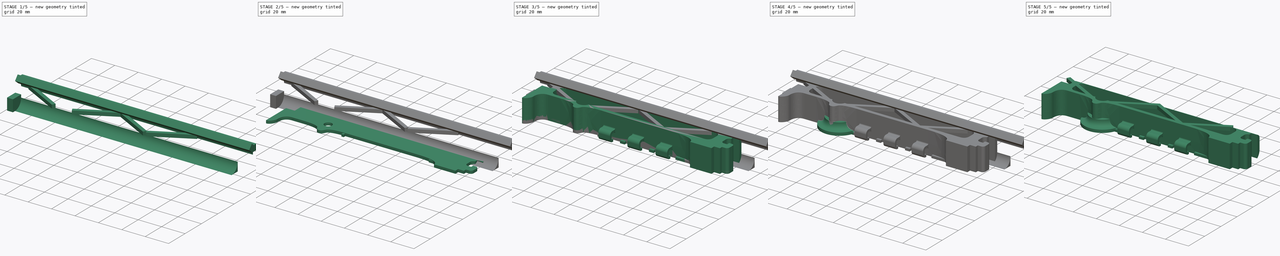
[diagram: build sequence overview — one tinted view per stage of 5, left to right]
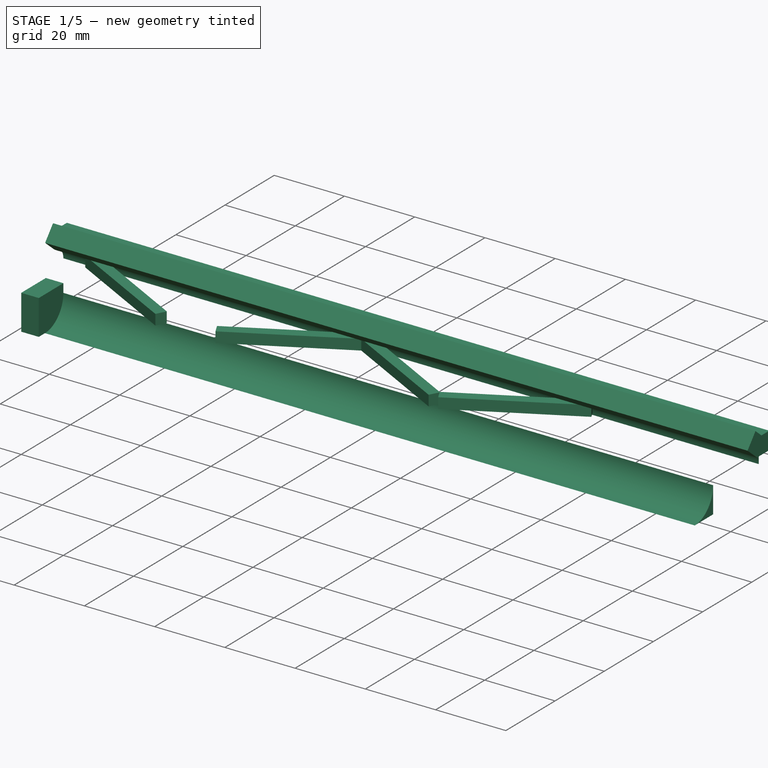
[diagram: stage 1 of 5 — iso view after this stage's code; geometry added in this stage tinted green]
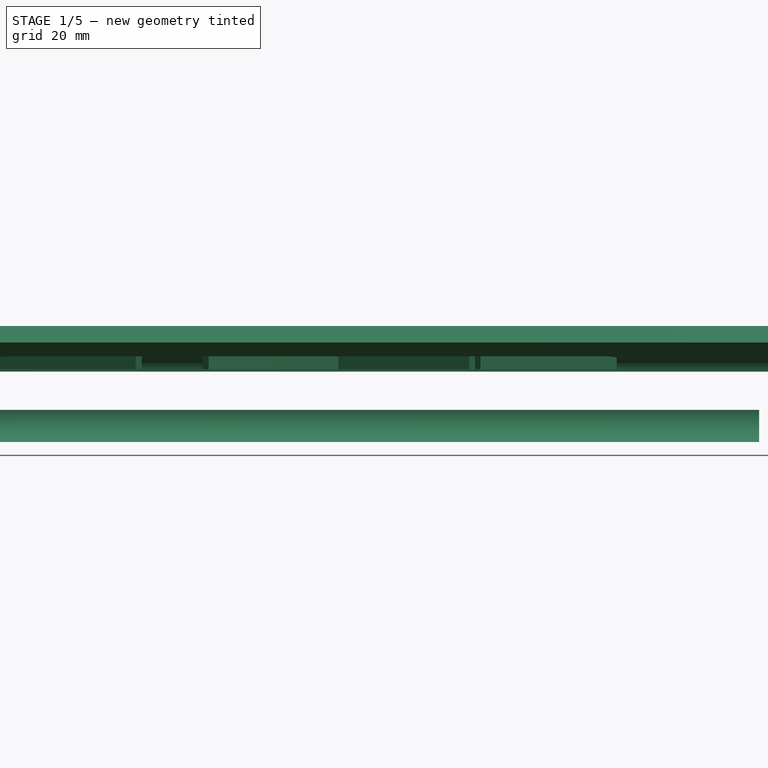
[diagram: stage 1 of 5 — front view after this stage's code; geometry added in this stage tinted green]
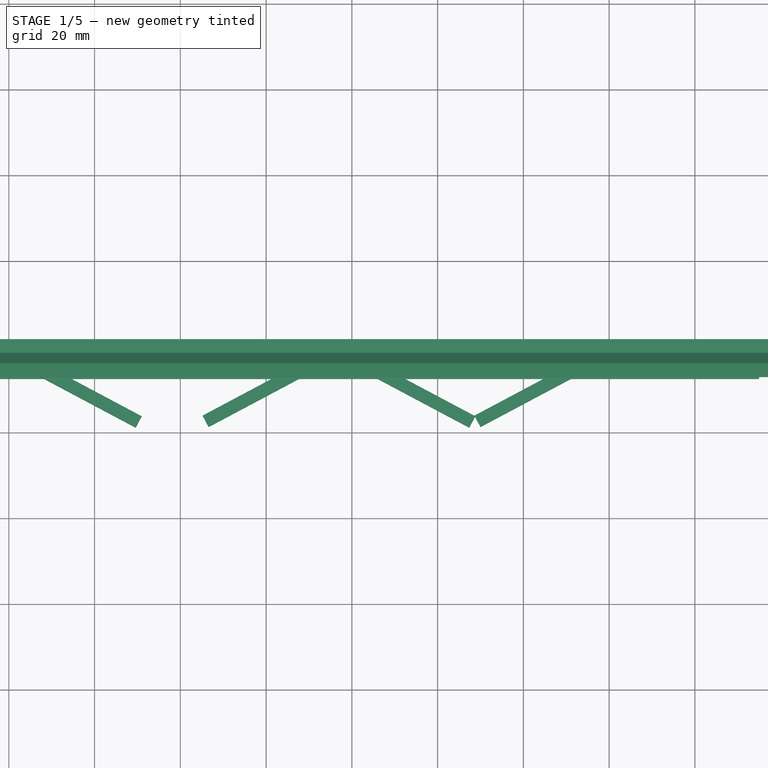
[diagram: stage 1 of 5 — top view after this stage's code; geometry added in this stage tinted green]
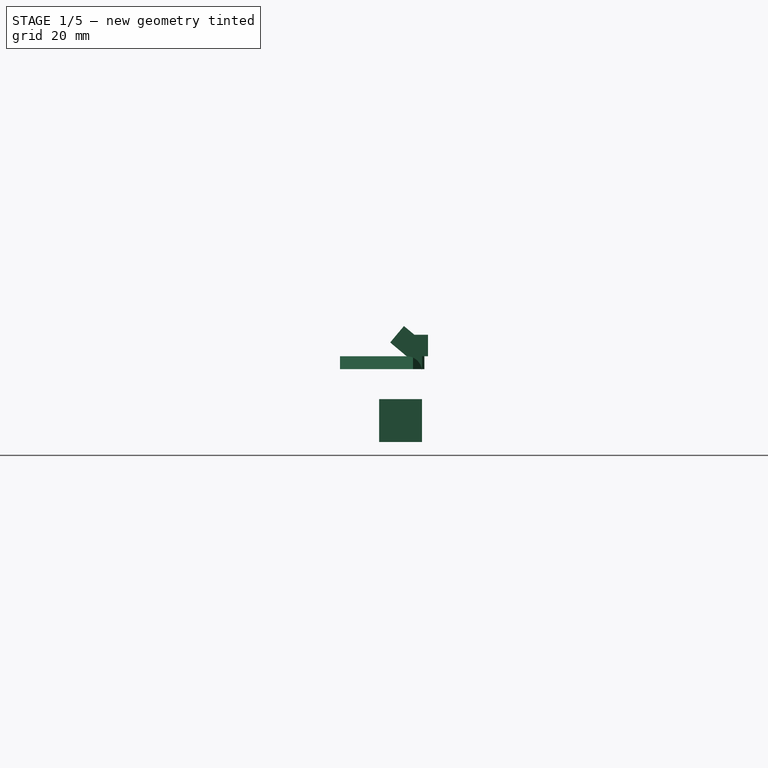
[diagram: stage 1 of 5 — right view after this stage's code; geometry added in this stage tinted green]
FCSTD DOCUMENT  (FreeCAD 0.19R0.19.2)
Label: v0_33
License: All rights reserved
LicenseURL: http://en.wikipedia.org/wiki/All_rights_reserved
objects: Part::Box×50, Part::MultiFuse×20, Part::Cut×7, Sketcher::SketchObject×6, Part::Extrusion×5, Part::Fillet×4, App::MeasureDistance×3, Part::Revolution×1
note: 93 computed .brp shape members not serialized (recipe doc carries the construction recipe); baked Part::Feature solids carry a one-line shape summary decoded from their .brp

FEATURE [Part::Box] Box051  label="Cube051"
  AttacherType = Attacher::AttachEngine3D
  Height = 10
  Length = 198
  Placement = pos=(-30,0,0) rot=(0,0,1;0rad)
  Width = 10
FEATURE [Part::Box] Box052  label="Cube052"
  AttacherType = Attacher::AttachEngine3D
  Height = 5
  Length = 200
  Placement = pos=(-30,6.4,10) rot=(1,0,0;0rad)
  Width = 5
FEATURE [Part::Box] Box053  label="Cube053"
  AttacherType = Attacher::AttachEngine3D
  Height = 5
  Length = 200
  Placement = pos=(-30,6.4,10) rot=(1,0,0;0.872665rad)
  Width = 5
FEATURE [Part::Box] Box054  label="Cube054"
  AttacherType = Attacher::AttachEngine3D
  Height = 10
  Length = 200
  Placement = pos=(-30,0,0) rot=(0,0,1;0rad)
  Width = 10
FEATURE [Part::Fillet] Fillet021
  Base = -> Box054
  Edges = 1 edges r=3.6: [Edge12]
FEATURE [Part::Cut] Cut015
  Base = -> Box051
  Tool = -> Fillet021
FEATURE [Part::MultiFuse] Fusion033  label="removeFromMainFusion014"
  Placement = pos=(-120,-10,10) rot=(0,0,1;0rad)
  Shapes = -> [Box053,Box052,Cut015]
FEATURE [Part::Box] Box055  label="Cube055"
  AttacherType = Attacher::AttachEngine3D
  Height = 10
  Length = 190
  Placement = pos=(-30,0,0) rot=(0,0,1;0rad)
  Width = 10
FEATURE [Part::Box] Box056  label="Cube056"
  AttacherType = Attacher::AttachEngine3D
  Height = 10
  Length = 190
  Placement = pos=(-35,0,0) rot=(0,0,1;0rad)
  Width = 10
FEATURE [Part::Fillet] Fillet022
  Base = -> Box055
  Edges = 1 edges r=7.5: [Edge11]
FEATURE [Part::Cut] Cut014  label="filletMain001"
  Base = -> Box056
  Placement = pos=(-120,-10,0) rot=(0,0,1;0rad)
  Tool = -> Fillet022
FEATURE [Part::MultiFuse] Fusion032  label="removeFromMain001"
  Shapes = -> [Fusion033,Cut014]
FEATURE [App::MeasureDistance] Distance  label="Distance: 137.10 mm"
  Distance = 137.1
  P1 = (-129.5,-9.29272,20)
  P2 = (7.6,-9.28168,20)
FEATURE [Part::Box] Box057  label="Cube057"
  AttacherType = Attacher::AttachEngine3D
  Height = 3
  Length = 36
  Placement = pos=(-30,-19,17) rot=(0,0,1;0.488692rad)
  Width = 3
FEATURE [Part::Box] Box058  label="Cube058"
  AttacherType = Attacher::AttachEngine3D
  Height = 3
  Length = 36
  Placement = pos=(-31.2,-16.5,17) rot=(0,0,1;2.6529rad)
  Width = 3
FEATURE [Part::Box] Box059  label="Cube059"
  AttacherType = Attacher::AttachEngine3D
  Height = 3
  Length = 36
  Placement = pos=(-93.4,-19,17) rot=(0,0,1;0.488692rad)
  Width = 3
FEATURE [Part::Box] Box060  label="Cube060"
  AttacherType = Attacher::AttachEngine3D
  Height = 3
  Length = 36
  Placement = pos=(-109,-16.5,17) rot=(0,0,1;2.6529rad)
  Width = 3
FEATURE [App::MeasureDistance] Distance001  label="Distance: 2.11 mm"
  Distance = 2.10892
  P1 = (-94.5379,-16.2073,20)
  P2 = (-96.6448,-16.3,20)
FEATURE [App::MeasureDistance] Distance002  label="Distance: 2.11 mm001"
  Distance = 2.10678
  P1 = (-107.278,-16.3,20)
  P2 = (-109.385,-16.3,20)
FEATURE [Part::Box] Box061  label="Cube061"
  AttacherType = Attacher::AttachEngine3D
  Height = 3
  Length = 36
  Placement = pos=(-109,-16.5,17) rot=(0,0,1;2.6529rad)
  Width = 3
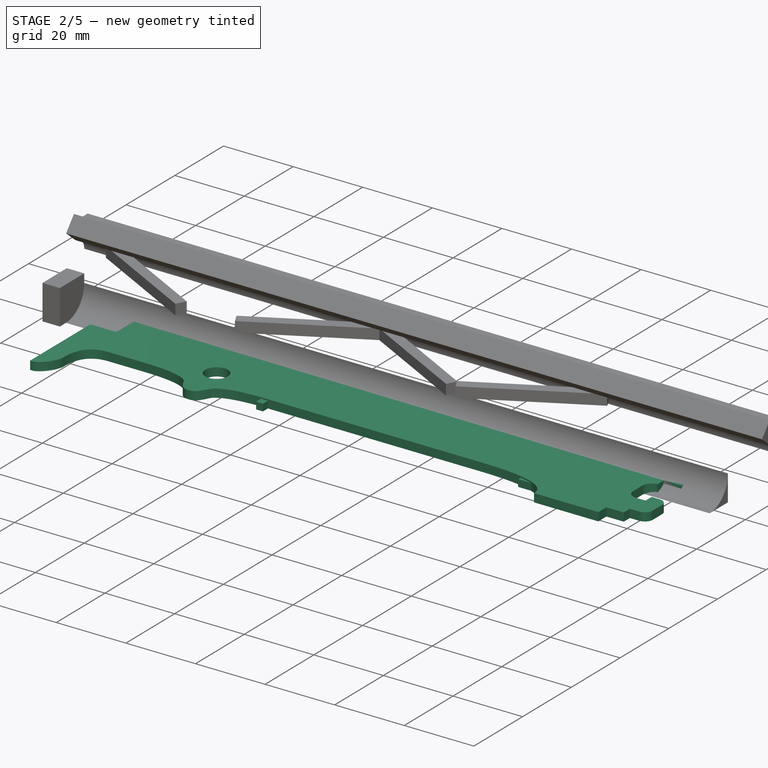
[diagram: stage 2 of 5 — iso view after this stage's code; geometry added in this stage tinted green]
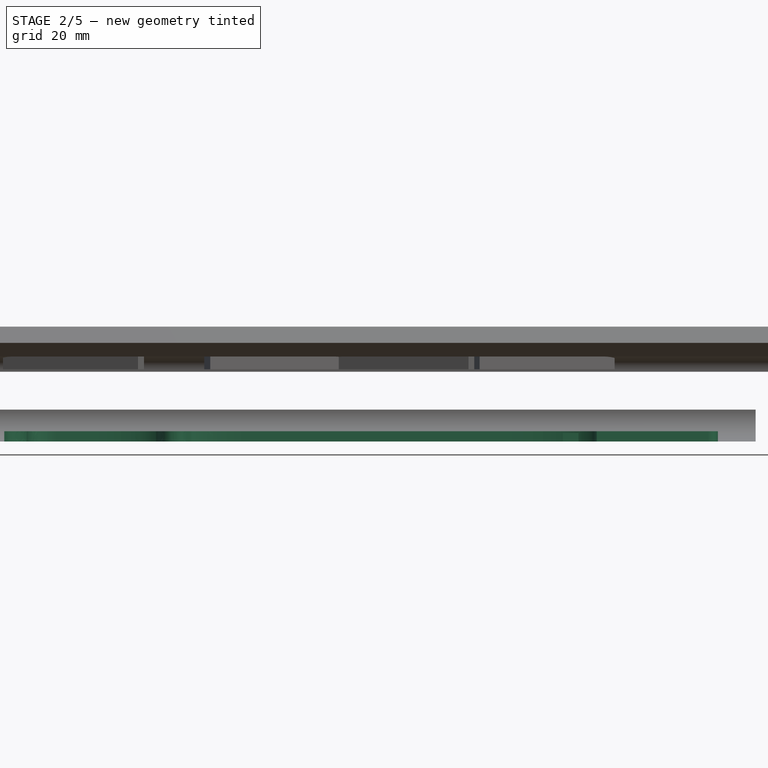
[diagram: stage 2 of 5 — front view after this stage's code; geometry added in this stage tinted green]
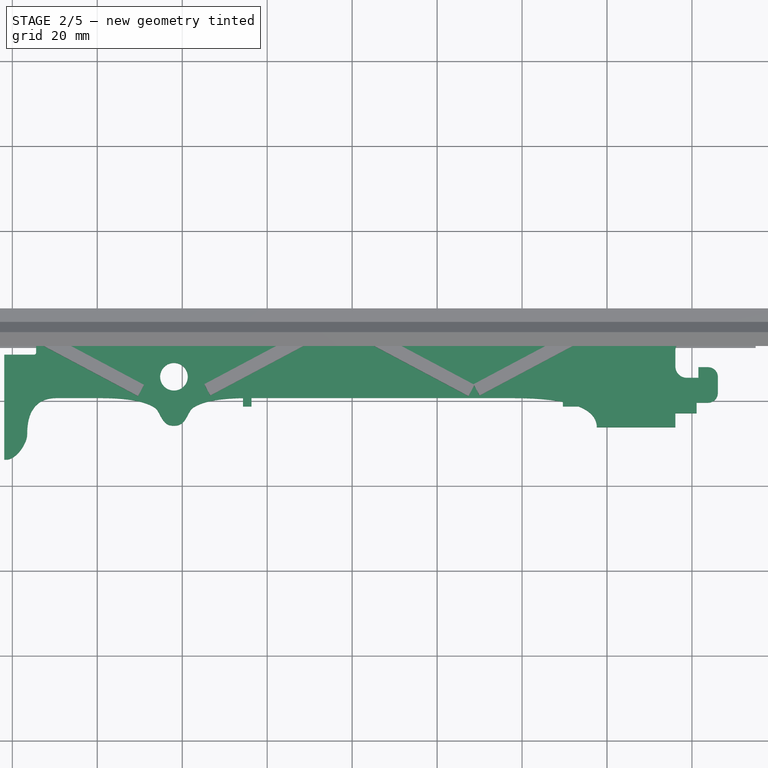
[diagram: stage 2 of 5 — top view after this stage's code; geometry added in this stage tinted green]
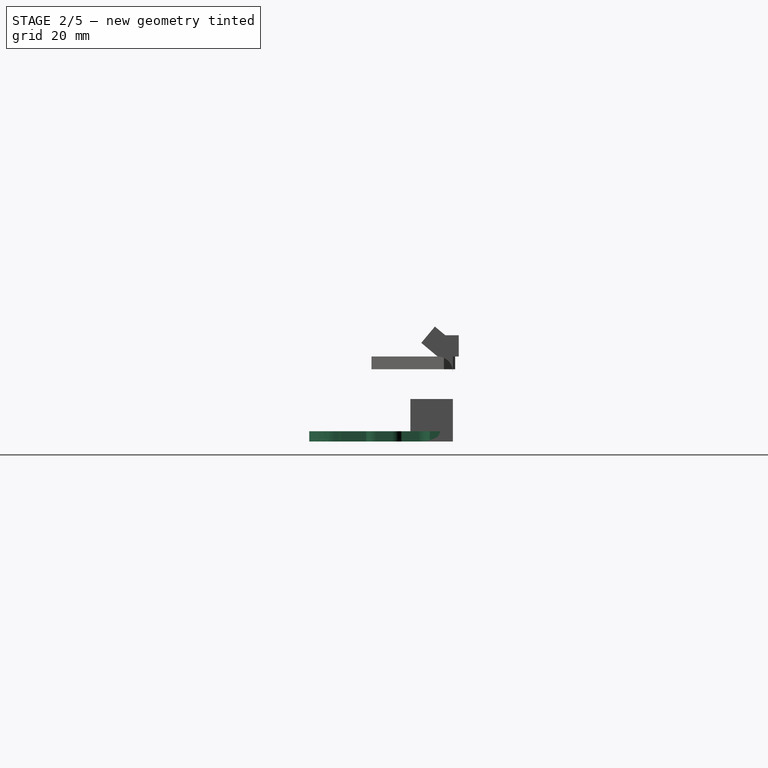
[diagram: stage 2 of 5 — right view after this stage's code; geometry added in this stage tinted green]
FEATURE [Part::Box] Box047  label="Cube047"
  AttacherType = Attacher::AttachEngine3D
  Height = 2
  Length = 2
  Placement = pos=(-85.7,-21.3,0) rot=(0,0,1;0rad)
  Width = 2
FEATURE [Part::Box] Box048  label="Cube048"
  AttacherType = Attacher::AttachEngine3D
  Height = 2
  Length = 2
  Placement = pos=(-87.7,-21.3,0) rot=(0,0,1;0rad)
  Width = 2
FEATURE [Part::Box] Box049  label="Cube049"
  AttacherType = Attacher::AttachEngine3D
  Height = 2
  Length = 2
  Placement = pos=(-85.7,-21.3,0) rot=(0,0,1;0rad)
  Width = 2
FEATURE [Part::MultiFuse] Fusion022
  Placement = pos=(77.3,0,0) rot=(0,0,1;0rad)
  Shapes = -> [Box049,Box048]
FEATURE [Part::Box] Box005  label="Cube005"
  AttacherType = Attacher::AttachEngine3D
  Height = 10
  Length = 198
  Placement = pos=(-30,0,0) rot=(0,0,1;0rad)
  Width = 10
FEATURE [Part::Box] Box006  label="Cube006"
  AttacherType = Attacher::AttachEngine3D
  Height = 5
  Length = 200
  Placement = pos=(-30,6.4,10) rot=(1,0,0;0rad)
  Width = 5
FEATURE [Part::Box] Box007  label="Cube007"
  AttacherType = Attacher::AttachEngine3D
  Height = 5
  Length = 200
  Placement = pos=(-30,6.4,10) rot=(1,0,0;0.872665rad)
  Width = 5
FEATURE [Part::Box] Box004  label="Cube004"
  AttacherType = Attacher::AttachEngine3D
  Height = 10
  Length = 200
  Placement = pos=(-30,0,0) rot=(0,0,1;0rad)
  Width = 10
FEATURE [Part::Fillet] Fillet020
  Base = -> Box004
  Edges = 1 edges r=3.6: [Edge12]
FEATURE [Part::Cut] Cut012
  Base = -> Box005
  Tool = -> Fillet020
FEATURE [Part::MultiFuse] Fusion013  label="removeFromMainFusion013"
  Placement = pos=(-120,-10,10) rot=(0,0,1;0rad)
  Shapes = -> [Box007,Box006,Cut012]
FEATURE [Part::Box] Box050  label="Cube050"
  AttacherType = Attacher::AttachEngine3D
  Height = 10
  Length = 190
  Placement = pos=(-30,0,0) rot=(0,0,1;0rad)
  Width = 10
FEATURE [Part::Box] Box001  label="Cube001"
  AttacherType = Attacher::AttachEngine3D
  Height = 10
  Length = 190
  Placement = pos=(-35,0,0) rot=(0,0,1;0rad)
  Width = 10
FEATURE [Part::Fillet] Fillet008
  Base = -> Box050
  Edges = 1 edges r=7.5: [Edge11]
FEATURE [Part::Cut] Cut013  label="filletMain"
  Base = -> Box001
  Placement = pos=(-120,-10,0) rot=(0,0,1;0rad)
  Tool = -> Fillet008
FEATURE [Part::MultiFuse] Fusion031  label="removeFromMain"
  Shapes = -> [Fusion013,Cut013]
FEATURE [Sketcher::SketchObject] Sketch
  FullyConstrained = true
  sketch-geometry (67):
    g0: Circle CenterX=-101.95 CenterY=-14.3 CenterZ=0 NormalX=0 NormalY=0 NormalZ=1 AngleXU=0 Radius=3.25
    g1: Circle CenterX=-97.7 CenterY=-21.8 CenterZ=0 NormalX=0 NormalY=0 NormalZ=1 AngleXU=0 Radius=1
    g2: Circle CenterX=-94.45 CenterY=-19.3 CenterZ=0 NormalX=0 NormalY=0 NormalZ=1 AngleXU=0 Radius=1
    g3: Circle CenterX=-84.45 CenterY=-19.3 CenterZ=0 NormalX=0 NormalY=0 NormalZ=1 AngleXU=0 Radius=1
    g4: BSplineCurve PolesCount=3 KnotsCount=2 Degree=2 IsPeriodic=0
    g5: GeomPoint X=-97.7 Y=-21.8 Z=0
    g6: GeomPoint X=-84.45 Y=-19.3 Z=0
    g7: Circle CenterX=-106.2 CenterY=-21.8 CenterZ=0 NormalX=0 NormalY=0 NormalZ=1 AngleXU=0 Radius=1
    g8: Circle CenterX=-109.45 CenterY=-19.3 CenterZ=0 NormalX=0 NormalY=0 NormalZ=1 AngleXU=0 Radius=1
    g9: Circle CenterX=-119.45 CenterY=-19.3 CenterZ=0 NormalX=0 NormalY=0 NormalZ=1 AngleXU=0 Radius=1
    g10: BSplineCurve PolesCount=3 KnotsCount=2 Degree=2 IsPeriodic=0
    g11: GeomPoint X=-106.2 Y=-21.8 Z=0
    g12: GeomPoint X=-119.45 Y=-19.3 Z=0
    g13-g16: Circle x4 (B-spline internal-alignment scaffolding for g17; pole/knot coordinates omitted)
    g17: BSplineCurve PolesCount=4 KnotsCount=2 Degree=3 IsPeriodic=0
    g18: GeomPoint X=-141.5 Y=-33.8 Z=0
    g19: GeomPoint X=-136.5 Y=-27.8 Z=0
    g20: Circle CenterX=-136.5 CenterY=-27.8 CenterZ=0 NormalX=0 NormalY=0 NormalZ=1 AngleXU=0 Radius=1
    g21: Circle CenterX=-136.5 CenterY=-19.3 CenterZ=0 NormalX=0 NormalY=0 NormalZ=1 AngleXU=0 Radius=1
    g22: Circle CenterX=-129.5 CenterY=-19.3 CenterZ=0 NormalX=0 NormalY=0 NormalZ=1 AngleXU=0 Radius=1
    g23: BSplineCurve PolesCount=3 KnotsCount=2 Degree=2 IsPeriodic=0
    g24: GeomPoint X=-136.5 Y=-27.8 Z=0
    g25: GeomPoint X=-129.5 Y=-19.3 Z=0
    g26: LineSegment StartX=-129.5 StartY=-19.3 StartZ=0 EndX=-119.45 EndY=-19.3 EndZ=0
    g27-g33: Circle x7 (B-spline internal-alignment scaffolding for g34; pole/knot coordinates omitted)
    g34: BSplineCurve PolesCount=7 KnotsCount=5 Degree=3 IsPeriodic=0
    g35-g39: GeomPoint x5 (B-spline internal-alignment scaffolding for g34; pole/knot coordinates omitted)
    g40: BSplineCurve PolesCount=3 KnotsCount=2 Degree=2 IsPeriodic=0
    g41: GeomPoint X=-2.4 Y=-26.2 Z=0
    g42: GeomPoint X=-22.4 Y=-19.3 Z=0
    g43: LineSegment StartX=-84.45 StartY=-19.3 StartZ=0 EndX=-22.4 EndY=-19.3 EndZ=0
    g44: LineSegment StartX=16.1 StartY=-26.2 StartZ=0 EndX=16.1 EndY=-22.9 EndZ=0
    g45: ArcOfCircle CenterX=23.8 CenterY=-14.35 CenterZ=0 NormalX=0 NormalY=0 NormalZ=1 AngleXU=0 Radius=2.3 StartAngle=8e-16 EndAngle=1.5708
    g46: LineSegment StartX=18.6 StartY=-5.40742 StartZ=0 EndX=18.6 EndY=-2.9 EndZ=0
    g47: LineSegment StartX=18.6 StartY=-2.9 StartZ=0 EndX=23.6 EndY=-2.9 EndZ=0
    g48: LineSegment StartX=23.6 StartY=-2.9 StartZ=0 EndX=23.6 EndY=2.58e-14 EndZ=0
    g49: LineSegment StartX=18.8 StartY=-14.55 StartZ=0 EndX=21.5 EndY=-14.55 EndZ=0
    g50: LineSegment StartX=21.5 StartY=-12.05 StartZ=0 EndX=21.5 EndY=-14.55 EndZ=0
    g51: LineSegment StartX=21.5 StartY=-12.05 StartZ=0 EndX=23.8 EndY=-12.05 EndZ=0
    g52: ArcOfCircle CenterX=23.8 CenterY=-18.1 CenterZ=0 NormalX=0 NormalY=0 NormalZ=1 AngleXU=0 Radius=2.3 StartAngle=4.71239 EndAngle=6.28319
    g53: LineSegment StartX=23.8 StartY=-20.4 StartZ=0 EndX=21.1 EndY=-20.4 EndZ=0
    g54: LineSegment StartX=26.1 StartY=-14.35 StartZ=0 EndX=26.1 EndY=-18.1 EndZ=0
    g55: ArcOfCircle CenterX=18.8 CenterY=-8.1 CenterZ=0 NormalX=0 NormalY=0 NormalZ=1 AngleXU=0 Radius=2.7 StartAngle=1.64494 EndAngle=3.14159
    g56: ArcOfCircle CenterX=18.8 CenterY=-11.85 CenterZ=0 NormalX=0 NormalY=0 NormalZ=1 AngleXU=0 Radius=2.7 StartAngle=3.14159 EndAngle=4.71239
    g57: LineSegment StartX=16.1 StartY=-8.1 StartZ=0 EndX=16.1 EndY=-11.85 EndZ=0
    g58: LineSegment StartX=21.1 StartY=-22.9 StartZ=0 EndX=21.1 EndY=-20.4 EndZ=0
    g59: LineSegment StartX=16.1 StartY=-22.9 StartZ=0 EndX=21.1 EndY=-22.9 EndZ=0
    g60: LineSegment StartX=-2.4 StartY=-26.2 StartZ=0 EndX=16.1 EndY=-26.2 EndZ=0
    g61: LineSegment StartX=23.6 StartY=2.58e-14 StartZ=0 EndX=-134.4 EndY=2.58e-14 EndZ=0
    g62: LineSegment StartX=-134.4 StartY=2.59e-14 StartZ=0 EndX=-134.4 EndY=-8.6 EndZ=0
    g63: ArcOfCircle CenterX=-134.9 CenterY=-8.6 CenterZ=0 NormalX=0 NormalY=0 NormalZ=1 AngleXU=0 Radius=0.5 StartAngle=4.71238 EndAngle=6.28319
    g64: LineSegment StartX=-134.9 StartY=-9.1 StartZ=0 EndX=-141.9 EndY=-9.1 EndZ=0
    g65: LineSegment StartX=-141.9 StartY=-9.1 StartZ=0 EndX=-141.9 EndY=-33.8 EndZ=0
    g66: LineSegment StartX=-141.9 StartY=-33.8 StartZ=0 EndX=-141.5 EndY=-33.8 EndZ=0
  constraints (105):
    c: Block(g0)
    c: Weight(g1) = 1
    c: Equal(g1,g2)
    c: Equal(g1,g3)
    c: InternalAlignment(g1,g4)
    c: InternalAlignment(g2,g4)
    c: InternalAlignment(g3,g4)
    c: InternalAlignment(g5,g4)
    c: InternalAlignment(g6,g4)
    c: Weight(g7) = 1
    c: Equal(g7,g8)
    c: Equal(g7,g9)
    c: InternalAlignment(g7,g10)
    c: InternalAlignment(g8,g10)
    c: InternalAlignment(g9,g10)
    c: InternalAlignment(g11,g10)
    c: InternalAlignment(g12,g10)
    c: Block(g10)
    c: Block(g4)
    c: Weight(g13) = 1
    c: Equal(g13,g14)
    c: Equal(g13,g15)
    c: Equal(g13,g16)
    c: InternalAlignment(g13-g16 -> g17) x4
    c: InternalAlignment(g18,g17)
    c: InternalAlignment(g19,g17)
    c: Weight(g20) = 1
    c: Equal(g20,g21)
    c: Equal(g20,g22)
    c: InternalAlignment(g20,g23)
    c: InternalAlignment(g21,g23)
    c: InternalAlignment(g22,g23)
    c: InternalAlignment(g24,g23)
    c: InternalAlignment(g25,g23)
    c: Block(g17)
    c: Block(g23)
    c: Coincident(g26,g23)
    c: Coincident(g26,g10)
    c: Horizontal(g26)
    c: Weight(g27) = 1
    c: Equal(g27, g28-g33) x6
    c: InternalAlignment(g27-g33 -> g34) x7
    c: InternalAlignment(g35-g39 -> g34) x5
    c: Block(g34)
    c: InternalAlignment(g41,g40)
    c: InternalAlignment(g42,g40)
    c: Block(g40)
    c: Coincident(g43,g4)
    c: Coincident(g43,g40)
    c: Horizontal(g43)
    c: Vertical(g44)
    c: Distance(g44) = 3.3
    c: Block(g52)
    c: Block(g45)
    c: Coincident(g53,g52)
    c: Horizontal(g53)
    c: Vertical(g58)
    c: Coincident(g58,g53)
    c: Coincident(g54,g45)
    c: Coincident(g54,g52)
    c: Vertical(g54)
    c: Vertical(g46)
    c: Block(g46)
    c: Coincident(g47,g46)
    c: Horizontal(g47)
    c: Vertical(g48)
    c: Block(g48)
    c: Block(g47)
    c: Coincident(g55,g46)
    c: Block(g56)
    c: Coincident(g57,g55)
    c: Vertical(g57)
    c: Block(g57)
    c: Coincident(g49,g56)
    c: Horizontal(g49)
    c: Vertical(g50)
    c: Coincident(g50,g49)
    c: Block(g50)
    c: Coincident(g51,g45)
    c: Horizontal(g51)
    c: Block(g51)
    c: Coincident(g59,g58)
    c: Horizontal(g59)
    c: Block(g59)
    c: Block(g55)
    c: Coincident(g59,g44)
    c: Coincident(g60,g40)
    c: Coincident(g60,g44)
    c: Horizontal(g60)
    c: Coincident(g61,g48)
    c: Horizontal(g61)
    c: Vertical(g62)
    c: Horizontal(g64)
    c: Coincident(g63,g62)
    c: Coincident(g63,g64)
    c: Block(g63)
    c: Coincident(g65,g64)
    c: Vertical(g65)
    c: Block(g65)
    c: Coincident(g66,g65)
    c: Coincident(g66,g17)
    c: Horizontal(g66)
    c: Block(g66)
    c: Block(g62)
    c: Coincident(g62,g61)
FEATURE [Part::Extrusion] Extrude
  Base = -> Sketch
  Dir = (0,0,1)
  DirMode = 2
  FaceMakerClass = Part::FaceMakerBullseye
  LengthFwd = 2.4
  LengthRev = 0
  Solid = true
  Symmetric = false
FEATURE [Part::Cut] Cut017
  Base = -> Extrude
  Tool = -> Fusion032
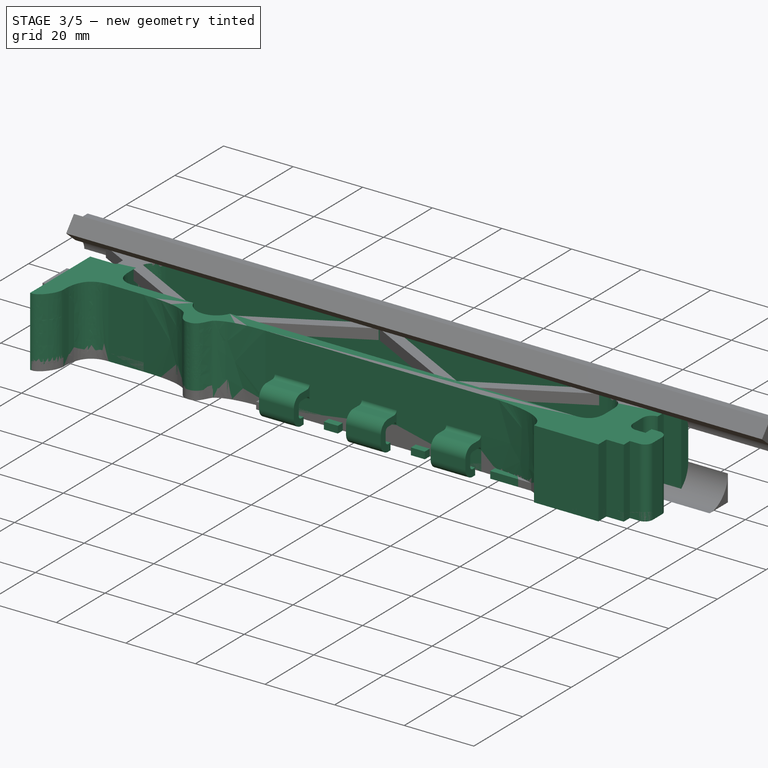
[diagram: stage 3 of 5 — iso view after this stage's code; geometry added in this stage tinted green]
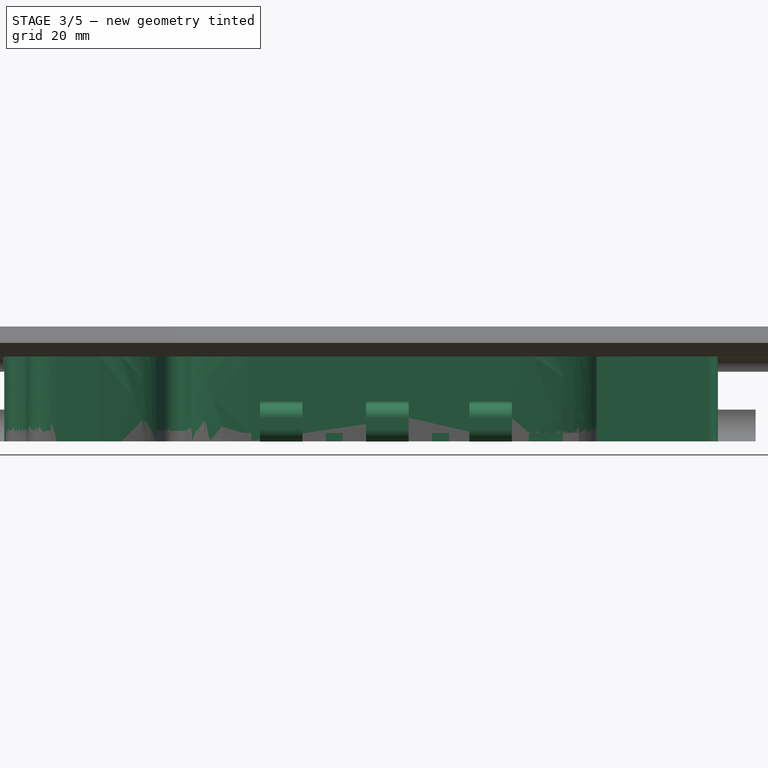
[diagram: stage 3 of 5 — front view after this stage's code; geometry added in this stage tinted green]
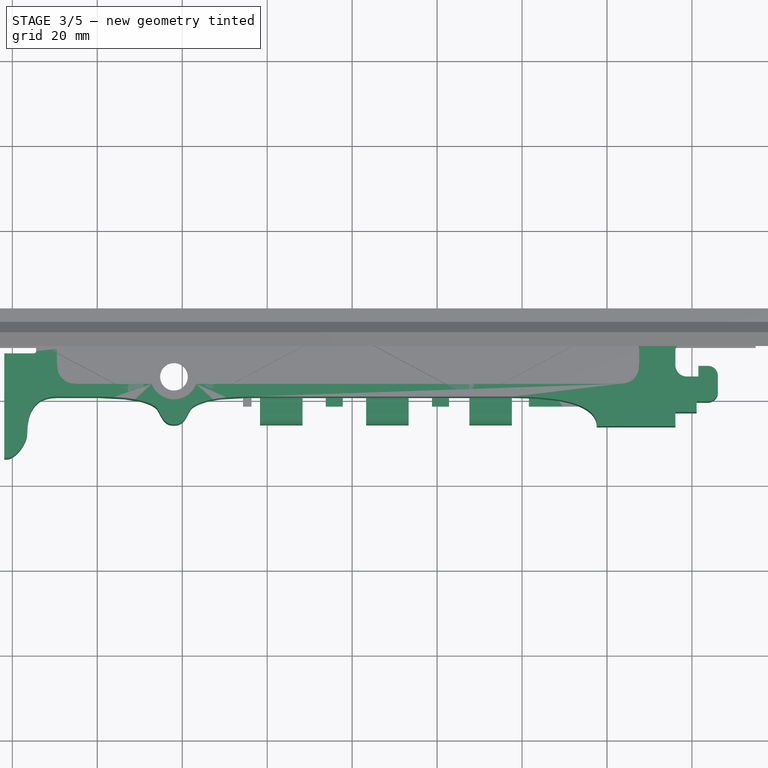
[diagram: stage 3 of 5 — top view after this stage's code; geometry added in this stage tinted green]
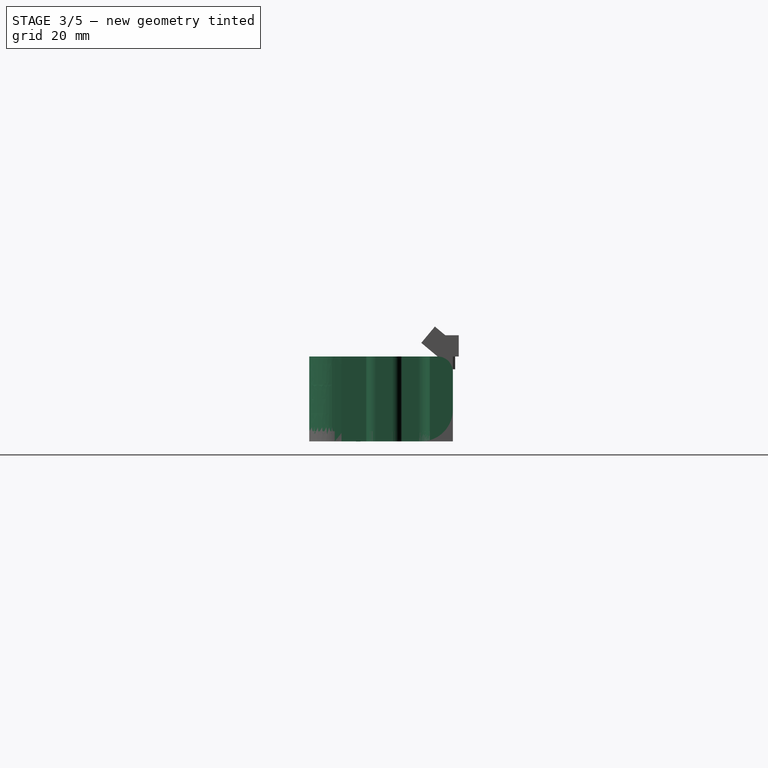
[diagram: stage 3 of 5 — right view after this stage's code; geometry added in this stage tinted green]
FEATURE [Sketcher::SketchObject] Sketch001
  FullyConstrained = true
  sketch-geometry (88):
    g0: Circle CenterX=-97.7 CenterY=-21.8 CenterZ=0 NormalX=0 NormalY=0 NormalZ=1 AngleXU=0 Radius=1
    g1: Circle CenterX=-94.45 CenterY=-19.3 CenterZ=0 NormalX=0 NormalY=0 NormalZ=1 AngleXU=0 Radius=1
    g2: Circle CenterX=-84.45 CenterY=-19.3 CenterZ=0 NormalX=0 NormalY=0 NormalZ=1 AngleXU=0 Radius=1
    g3: BSplineCurve PolesCount=3 KnotsCount=2 Degree=2 IsPeriodic=0
    g4: GeomPoint X=-97.7 Y=-21.8 Z=0
    g5: GeomPoint X=-84.45 Y=-19.3 Z=0
    g6: Circle CenterX=-106.2 CenterY=-21.8 CenterZ=0 NormalX=0 NormalY=0 NormalZ=1 AngleXU=0 Radius=1
    g7: Circle CenterX=-109.45 CenterY=-19.3 CenterZ=0 NormalX=0 NormalY=0 NormalZ=1 AngleXU=0 Radius=1
    g8: Circle CenterX=-119.45 CenterY=-19.3 CenterZ=0 NormalX=0 NormalY=0 NormalZ=1 AngleXU=0 Radius=1
    g9: BSplineCurve PolesCount=3 KnotsCount=2 Degree=2 IsPeriodic=0
    g10: GeomPoint X=-106.2 Y=-21.8 Z=0
    g11: GeomPoint X=-119.45 Y=-19.3 Z=0
    g12-g15: Circle x4 (B-spline internal-alignment scaffolding for g16; pole/knot coordinates omitted)
    g16: BSplineCurve PolesCount=4 KnotsCount=2 Degree=3 IsPeriodic=0
    g17: GeomPoint X=-141.5 Y=-33.8 Z=0
    g18: GeomPoint X=-136.5 Y=-27.8 Z=0
    g19: Circle CenterX=-136.5 CenterY=-27.8 CenterZ=0 NormalX=0 NormalY=0 NormalZ=1 AngleXU=0 Radius=1
    g20: Circle CenterX=-136.5 CenterY=-19.3 CenterZ=0 NormalX=0 NormalY=0 NormalZ=1 AngleXU=0 Radius=1
    g21: Circle CenterX=-129.5 CenterY=-19.3 CenterZ=0 NormalX=0 NormalY=0 NormalZ=1 AngleXU=0 Radius=1
    g22: BSplineCurve PolesCount=3 KnotsCount=2 Degree=2 IsPeriodic=0
    g23: GeomPoint X=-136.5 Y=-27.8 Z=0
    g24: GeomPoint X=-129.5 Y=-19.3 Z=0
    g25: LineSegment StartX=-129.5 StartY=-19.3 StartZ=0 EndX=-119.45 EndY=-19.3 EndZ=0
    g26-g32: Circle x7 (B-spline internal-alignment scaffolding for g33; pole/knot coordinates omitted)
    g33: BSplineCurve PolesCount=7 KnotsCount=5 Degree=3 IsPeriodic=0
    g34-g38: GeomPoint x5 (B-spline internal-alignment scaffolding for g33; pole/knot coordinates omitted)
    g39: Circle CenterX=-124.5 CenterY=-16.3 CenterZ=0 NormalX=0 NormalY=0 NormalZ=1 AngleXU=0 Radius=1
    g40: Circle CenterX=-129.5 CenterY=-16.3 CenterZ=0 NormalX=0 NormalY=0 NormalZ=1 AngleXU=0 Radius=1
    g41: Circle CenterX=-129.5 CenterY=-11.3 CenterZ=0 NormalX=0 NormalY=0 NormalZ=1 AngleXU=0 Radius=1
    g42: BSplineCurve PolesCount=3 KnotsCount=2 Degree=2 IsPeriodic=0
    g43: GeomPoint X=-124.5 Y=-16.3 Z=0
    g44: GeomPoint X=-129.5 Y=-11.3 Z=0
    g45: Circle CenterX=-129.5 CenterY=-8 CenterZ=0 NormalX=0 NormalY=0 NormalZ=1 AngleXU=0 Radius=1
    g46: Circle CenterX=-129.5 CenterY=-3 CenterZ=0 NormalX=0 NormalY=0 NormalZ=1 AngleXU=0 Radius=1
    g47: Circle CenterX=-124.5 CenterY=-3 CenterZ=0 NormalX=0 NormalY=0 NormalZ=1 AngleXU=0 Radius=1
    g48: BSplineCurve PolesCount=3 KnotsCount=2 Degree=2 IsPeriodic=0
    g49: GeomPoint X=-129.5 Y=-8 Z=0
    g50: GeomPoint X=-124.5 Y=-3 Z=0
    g51: LineSegment StartX=-129.5 StartY=-8 StartZ=0 EndX=-129.5 EndY=-11.3 EndZ=0
    g52: ArcOfCircle CenterX=-101.95 CenterY=-14.3 CenterZ=0 NormalX=0 NormalY=0 NormalZ=1 AngleXU=0 Radius=5.61805 StartAngle=3.50557 EndAngle=5.91921
    g53: LineSegment StartX=-124.5 StartY=-16.3 StartZ=0 EndX=-107.2 EndY=-16.3 EndZ=0
    g54: Circle CenterX=-2.4 CenterY=-26.2 CenterZ=0 NormalX=0 NormalY=0 NormalZ=1 AngleXU=0 Radius=1
    g55: Circle CenterX=-2.4 CenterY=-19.3 CenterZ=0 NormalX=0 NormalY=0 NormalZ=1 AngleXU=0 Radius=1
    g56: Circle CenterX=-22.4 CenterY=-19.3 CenterZ=0 NormalX=0 NormalY=0 NormalZ=1 AngleXU=0 Radius=1
    g57: BSplineCurve PolesCount=3 KnotsCount=2 Degree=2 IsPeriodic=0
    g58: GeomPoint X=-2.4 Y=-26.2 Z=0
    g59: LineSegment StartX=-22.4 StartY=-19.3 StartZ=0 EndX=-84.45 EndY=-19.3 EndZ=0
    g60: LineSegment StartX=18.6 StartY=-2.9 StartZ=0 EndX=23.6 EndY=-2.9 EndZ=0
    g61: ArcOfCircle CenterX=23.8 CenterY=-14.35 CenterZ=0 NormalX=0 NormalY=0 NormalZ=1 AngleXU=0 Radius=2.3 StartAngle=8e-16 EndAngle=1.5708
    g62: ArcOfCircle CenterX=23.8 CenterY=-18.1 CenterZ=0 NormalX=0 NormalY=0 NormalZ=1 AngleXU=0 Radius=2.3 StartAngle=4.71239 EndAngle=6.28319
    g63: LineSegment StartX=23.8 StartY=-20.4 StartZ=0 EndX=21.1 EndY=-20.4 EndZ=0
    g64: LineSegment StartX=21.1 StartY=-22.9 StartZ=0 EndX=21.1 EndY=-20.4 EndZ=0
    g65: LineSegment StartX=26.1 StartY=-14.35 StartZ=0 EndX=26.1 EndY=-18.1 EndZ=0
    g66: LineSegment StartX=18.6 StartY=-5.40742 StartZ=0 EndX=18.6 EndY=-2.9 EndZ=0
    g67: ArcOfCircle CenterX=18.8 CenterY=-8.1 CenterZ=0 NormalX=0 NormalY=0 NormalZ=1 AngleXU=0 Radius=2.7 StartAngle=1.64494 EndAngle=3.14159
    g68: ArcOfCircle CenterX=18.8 CenterY=-11.85 CenterZ=0 NormalX=0 NormalY=0 NormalZ=1 AngleXU=0 Radius=2.7 StartAngle=3.14159 EndAngle=4.71239
    g69: LineSegment StartX=16.1 StartY=-8.1 StartZ=0 EndX=16.1 EndY=-11.85 EndZ=0
    g70: LineSegment StartX=18.8 StartY=-14.55 StartZ=0 EndX=21.5 EndY=-14.55 EndZ=0
    g71: LineSegment StartX=21.5 StartY=-12.05 StartZ=0 EndX=21.5 EndY=-14.55 EndZ=0
    g72: LineSegment StartX=21.5 StartY=-12.05 StartZ=0 EndX=23.8 EndY=-12.05 EndZ=0
    g73: LineSegment StartX=16.1 StartY=-22.9 StartZ=0 EndX=21.1 EndY=-22.9 EndZ=0
    g74: LineSegment StartX=23.6 StartY=-2.9 StartZ=0 EndX=23.6 EndY=0 EndZ=0
    g75: LineSegment StartX=16.1 StartY=-22.9 StartZ=0 EndX=16.1 EndY=-26.2 EndZ=0
    g76: LineSegment StartX=-2.4 StartY=-26.2 StartZ=0 EndX=16.1 EndY=-26.2 EndZ=0
    g77: BSplineCurve PolesCount=3 KnotsCount=2 Degree=2 IsPeriodic=0
    g78: LineSegment StartX=7.6 StartY=-8 StartZ=0 EndX=7.6 EndY=-11.3 EndZ=0
    g79: BSplineCurve PolesCount=3 KnotsCount=2 Degree=2 IsPeriodic=0
    g80: LineSegment StartX=2.6 StartY=-16.3 StartZ=0 EndX=-96.7 EndY=-16.3 EndZ=0
    g81: LineSegment StartX=2.6 StartY=-3 StartZ=0 EndX=-124.5 EndY=-3 EndZ=0
    g82: ArcOfCircle CenterX=-134.9 CenterY=-8.6 CenterZ=0 NormalX=0 NormalY=0 NormalZ=1 AngleXU=0 Radius=0.5 StartAngle=4.71238 EndAngle=6.28319
    g83: LineSegment StartX=-141.9 StartY=-9.1 StartZ=0 EndX=-134.9 EndY=-9.1 EndZ=0
    g84: LineSegment StartX=-141.9 StartY=-33.8 StartZ=0 EndX=-141.5 EndY=-33.8 EndZ=0
    g85: LineSegment StartX=-141.9 StartY=-9.1 StartZ=0 EndX=-141.9 EndY=-33.8 EndZ=0
    g86: LineSegment StartX=-134.4 StartY=-8.6 StartZ=0 EndX=-134.4 EndY=0 EndZ=0
    g87: LineSegment StartX=-134.4 StartY=0 StartZ=0 EndX=23.6 EndY=0 EndZ=0
  constraints (145):
    c: Weight(g0) = 1
    c: Equal(g0,g1)
    c: Equal(g0,g2)
    c: InternalAlignment(g0,g3)
    c: InternalAlignment(g1,g3)
    c: InternalAlignment(g2,g3)
    c: InternalAlignment(g4,g3)
    c: InternalAlignment(g5,g3)
    c: Weight(g6) = 1
    c: Equal(g6,g7)
    c: Equal(g6,g8)
    c: InternalAlignment(g6,g9)
    c: InternalAlignment(g7,g9)
    c: InternalAlignment(g8,g9)
    c: InternalAlignment(g10,g9)
    c: InternalAlignment(g11,g9)
    c: Block(g3)
    c: Weight(g12) = 1
    c: Equal(g12,g13)
    c: Equal(g12,g14)
    c: Equal(g12,g15)
    c: InternalAlignment(g12-g15 -> g16) x4
    c: InternalAlignment(g17,g16)
    c: InternalAlignment(g18,g16)
    c: Weight(g19) = 1
    c: Equal(g19,g20)
    c: Equal(g19,g21)
    c: InternalAlignment(g19,g22)
    c: InternalAlignment(g20,g22)
    c: InternalAlignment(g21,g22)
    c: InternalAlignment(g23,g22)
    c: InternalAlignment(g24,g22)
    c: Block(g16)
    c: Coincident(g25,g22)
    c: Coincident(g25,g9)
    c: Horizontal(g25)
    c: Weight(g26) = 1
    c: Equal(g26, g27-g32) x6
    c: InternalAlignment(g26-g32 -> g33) x7
    c: InternalAlignment(g34-g38 -> g33) x5
    c: Block(g33)
    c: Block(g9)
    c: Block(g22)
    c: Weight(g39) = 1
    c: Equal(g39,g40)
    c: Equal(g39,g41)
    c: InternalAlignment(g39,g42)
    c: InternalAlignment(g40,g42)
    c: InternalAlignment(g41,g42)
    c: InternalAlignment(g43,g42)
    c: InternalAlignment(g44,g42)
    c: Weight(g45) = 1
    c: Equal(g45,g46)
    c: Equal(g45,g47)
    c: InternalAlignment(g45,g48)
    c: InternalAlignment(g46,g48)
    c: InternalAlignment(g47,g48)
    c: InternalAlignment(g49,g48)
    c: InternalAlignment(g50,g48)
    c: Block(g48)
    c: Block(g42)
    c: Coincident(g51,g48)
    c: Coincident(g51,g42)
    c: Vertical(g51)
    c: Coincident(g53,g42)
    c: Coincident(g53,g52)
    c: Horizontal(g53)
    c: Block(g52)
    c: Equal(g54,g55)
    c: Equal(g54,g56)
    c: InternalAlignment(g54,g57)
    c: InternalAlignment(g55,g57)
    c: InternalAlignment(g56,g57)
    c: InternalAlignment(g58,g57)
    c: Block(g57)
    c: Coincident(g59,g57)
    c: Coincident(g59,g3)
    c: Horizontal(g59)
    c: Block(g59)
    c: Block(g62)
    c: Block(g61)
    c: Coincident(g63,g62)
    c: Horizontal(g63)
    c: Vertical(g64)
    c: Coincident(g64,g63)
    c: Coincident(g65,g61)
    c: Coincident(g65,g62)
    c: Vertical(g65)
    c: Vertical(g66)
    c: Block(g66)
    c: Coincident(g60,g66)
    c: Horizontal(g60)
    c: Block(g60)
    c: Coincident(g67,g66)
    c: Block(g68)
    c: Vertical(g69)
    c: Block(g69)
    c: Coincident(g70,g68)
    c: Horizontal(g70)
    c: Vertical(g71)
    c: Coincident(g71,g70)
    c: Block(g71)
    c: Coincident(g72,g61)
    c: Horizontal(g72)
    c: Block(g72)
    c: Coincident(g73,g64)
    c: Horizontal(g73)
    c: Block(g73)
    c: Block(g67)
    c: Coincident(g74,g60)
    c: Vertical(g74)
    c: Vertical(g75)
    c: Block(g75)
    c: Coincident(g76,g57)
    c: Coincident(g76,g75)
    c: Horizontal(g76)
    c: Block(g77)
    c: Block(g79)
    c: Coincident(g78,g79)
    c: Coincident(g78,g77)
    c: Vertical(g78)
    c: Coincident(g80,g77)
    c: Coincident(g80,g52)
    c: Horizontal(g80)
    c: Coincident(g81,g79)
    c: Coincident(g81,g48)
    c: Horizontal(g81)
    c: Block(g82)
    c: Coincident(g83,g82)
    c: Horizontal(g83)
    c: Coincident(g84,g16)
    c: Horizontal(g84)
    c: Block(g84)
    c: Coincident(g85,g83)
    c: Coincident(g85,g84)
    c: Vertical(g85)
    c: Coincident(g86,g82)
    c: Vertical(g86)
    c: Coincident(g87,g86)
    c: Coincident(g87,g74)
    c: Horizontal(g87)
    c: Block(g87)
    c: Block(g83)
    c: Block(g86)
    c: Block(g85)
FEATURE [Part::Extrusion] Extrude001
  Base = -> Sketch001
  Dir = (0,0,1)
  DirMode = 2
  FaceMakerClass = Part::FaceMakerBullseye
  LengthFwd = 20
  LengthRev = 0
  Solid = true
  Symmetric = false
FEATURE [Sketcher::SketchObject] Sketch044
  FullyConstrained = true
  MapMode = 4
  Placement = pos=(0,0,0) rot=(0.57735,0.57735,0.57735;2.0944rad)
  sketch-geometry (14):
    g0: LineSegment StartX=6.08745 StartY=-4.11588 StartZ=0 EndX=6.08745 EndY=-2.11589 EndZ=0
    g1: LineSegment StartX=8.08745 StartY=1.38411 StartZ=0 EndX=8.08745 EndY=-1.11589 EndZ=0
    g2: ArcOfCircle CenterX=7.08745 CenterY=-1.11589 CenterZ=0 NormalX=0 NormalY=0 NormalZ=1 AngleXU=0 Radius=1 StartAngle=4.71239 EndAngle=6.28319
    g3: LineSegment StartX=6.08745 StartY=-2.11589 StartZ=0 EndX=7.08745 EndY=-2.11589 EndZ=0
    g4: LineSegment StartX=6.08745 StartY=-4.11588 StartZ=0 EndX=7.08745 EndY=-4.11588 EndZ=0
    g5: ArcOfCircle CenterX=7.08745 CenterY=-1.11589 CenterZ=0 NormalX=0 NormalY=0 NormalZ=1 AngleXU=0 Radius=3 StartAngle=4.71239 EndAngle=6.28319
    g6: ArcOfCircle CenterX=7.08745 CenterY=1.38411 CenterZ=0 NormalX=0 NormalY=0 NormalZ=1 AngleXU=0 Radius=1 StartAngle=5.35e-14 EndAngle=1.5708
    g7: LineSegment StartX=10.0875 StartY=-1.11588 StartZ=0 EndX=10.0875 EndY=1.38411 EndZ=0
    g8: ArcOfCircle CenterX=7.08745 CenterY=1.38411 CenterZ=0 NormalX=0 NormalY=0 NormalZ=1 AngleXU=0 Radius=3 StartAngle=3.57e-14 EndAngle=1.5708
    g9: ArcOfCircle CenterX=4.58745 CenterY=1.38412 CenterZ=0 NormalX=0 NormalY=0 NormalZ=1 AngleXU=0 Radius=1 StartAngle=1.57081 EndAngle=3.14159
    g10: LineSegment StartX=4.58744 StartY=2.38411 StartZ=0 EndX=7.08745 EndY=2.38411 EndZ=0
    g11: LineSegment StartX=4.58745 StartY=4.38411 StartZ=0 EndX=7.08745 EndY=4.38411 EndZ=0
    g12: ArcOfCircle CenterX=4.58745 CenterY=5.38411 CenterZ=0 NormalX=0 NormalY=0 NormalZ=1 AngleXU=0 Radius=1 StartAngle=3.14159 EndAngle=4.71239
    g13: LineSegment StartX=3.58745 StartY=5.38411 StartZ=0 EndX=3.58745 EndY=1.38411 EndZ=0
  constraints (33):
    c: Vertical(g0)
    c: Block(g0)
    c: Block(g1)
    c: Coincident(g2,g1)
    c: Coincident(g3,g0)
    c: Coincident(g3,g2)
    c: Horizontal(g3)
    c: Block(g2)
    c: Coincident(g4,g0)
    c: Horizontal(g4)
    c: Coincident(g5,g2)
    c: Block(g5)
    c: Block(g4)
    c: Coincident(g6,g1)
    c: Block(g6)
    c: Coincident(g7,g5)
    c: Vertical(g7)
    c: Coincident(g8,g6)
    c: Block(g8)
    c: Block(g7)
    c: Coincident(g10,g9)
    c: Coincident(g10,g6)
    c: Horizontal(g10)
    c: Block(g10)
    c: Block(g9)
    c: Coincident(g11,g8)
    c: Horizontal(g11)
    c: Block(g12)
    c: Block(g11)
    c: Coincident(g13,g12)
    c: Coincident(g13,g9)
    c: Vertical(g13)
    c: Tangent(g13,g9)
FEATURE [Part::Extrusion] Extrude039
  Base = -> Sketch044
  Dir = (1,0,0)
  DirMode = 2
  FaceMakerClass = Part::FaceMakerBullseye
  LengthFwd = 10
  LengthRev = 0
  Placement = pos=(-46.7,-15.71,4.115) rot=(0,0,1;3.14159rad)
  Solid = true
  Symmetric = false
FEATURE [Sketcher::SketchObject] Sketch045
  FullyConstrained = true
  MapMode = 4
  Placement = pos=(0,0,0) rot=(0.57735,0.57735,0.57735;2.0944rad)
  sketch-geometry (14):
    g0: LineSegment StartX=6.08745 StartY=-4.11588 StartZ=0 EndX=6.08745 EndY=-2.11589 EndZ=0
    g1: LineSegment StartX=8.08745 StartY=1.38411 StartZ=0 EndX=8.08745 EndY=-1.11589 EndZ=0
    g2: ArcOfCircle CenterX=7.08745 CenterY=-1.11589 CenterZ=0 NormalX=0 NormalY=0 NormalZ=1 AngleXU=0 Radius=1 StartAngle=4.71239 EndAngle=6.28319
    g3: LineSegment StartX=6.08745 StartY=-2.11589 StartZ=0 EndX=7.08745 EndY=-2.11589 EndZ=0
    g4: LineSegment StartX=6.08745 StartY=-4.11588 StartZ=0 EndX=7.08745 EndY=-4.11588 EndZ=0
    g5: ArcOfCircle CenterX=7.08745 CenterY=-1.11589 CenterZ=0 NormalX=0 NormalY=0 NormalZ=1 AngleXU=0 Radius=3 StartAngle=4.71239 EndAngle=6.28319
    g6: ArcOfCircle CenterX=7.08745 CenterY=1.38411 CenterZ=0 NormalX=0 NormalY=0 NormalZ=1 AngleXU=0 Radius=1 StartAngle=5.35e-14 EndAngle=1.5708
    g7: LineSegment StartX=10.0875 StartY=-1.11588 StartZ=0 EndX=10.0875 EndY=1.38411 EndZ=0
    g8: ArcOfCircle CenterX=7.08745 CenterY=1.38411 CenterZ=0 NormalX=0 NormalY=0 NormalZ=1 AngleXU=0 Radius=3 StartAngle=3.57e-14 EndAngle=1.5708
    g9: ArcOfCircle CenterX=4.58745 CenterY=1.38412 CenterZ=0 NormalX=0 NormalY=0 NormalZ=1 AngleXU=0 Radius=1 StartAngle=1.57081 EndAngle=3.14159
    g10: LineSegment StartX=4.58744 StartY=2.38411 StartZ=0 EndX=7.08745 EndY=2.38411 EndZ=0
    g11: LineSegment StartX=4.58745 StartY=4.38411 StartZ=0 EndX=7.08745 EndY=4.38411 EndZ=0
    g12: ArcOfCircle CenterX=4.58745 CenterY=5.38411 CenterZ=0 NormalX=0 NormalY=0 NormalZ=1 AngleXU=0 Radius=1 StartAngle=3.14159 EndAngle=4.71239
    g13: LineSegment StartX=3.58745 StartY=5.38411 StartZ=0 EndX=3.58745 EndY=1.38411 EndZ=0
  constraints (33):
    c: Vertical(g0)
    c: Block(g0)
    c: Block(g1)
    c: Coincident(g2,g1)
    c: Coincident(g3,g0)
    c: Coincident(g3,g2)
    c: Horizontal(g3)
    c: Block(g2)
    c: Coincident(g4,g0)
    c: Horizontal(g4)
    c: Coincident(g5,g2)
    c: Block(g5)
    c: Block(g4)
    c: Coincident(g6,g1)
    c: Block(g6)
    c: Coincident(g7,g5)
    c: Vertical(g7)
    c: Coincident(g8,g6)
    c: Block(g8)
    c: Block(g7)
    c: Coincident(g10,g9)
    c: Coincident(g10,g6)
    c: Horizontal(g10)
    c: Block(g10)
    c: Block(g9)
    c: Coincident(g11,g8)
    c: Horizontal(g11)
    c: Block(g12)
    c: Block(g11)
    c: Coincident(g13,g12)
    c: Coincident(g13,g9)
    c: Vertical(g13)
    c: Tangent(g13,g9)
FEATURE [Part::Extrusion] Extrude040
  Base = -> Sketch045
  Dir = (1,0,0)
  DirMode = 2
  FaceMakerClass = Part::FaceMakerBullseye
  LengthFwd = 10
  LengthRev = 0
  Placement = pos=(-71.7,-15.71,4.115) rot=(0,0,1;3.14159rad)
  Solid = true
  Symmetric = false
FEATURE [Part::Box] Box025  label="Cube025"
  AttacherType = Attacher::AttachEngine3D
  Height = 2
  Length = 2
  Placement = pos=(-85.7,-21.3,0) rot=(0,0,1;0rad)
  Width = 2
FEATURE [Sketcher::SketchObject] Sketch046
  FullyConstrained = true
  MapMode = 4
  Placement = pos=(0,0,0) rot=(0.57735,0.57735,0.57735;2.0944rad)
  sketch-geometry (14):
    g0: LineSegment StartX=6.08745 StartY=-4.11588 StartZ=0 EndX=6.08745 EndY=-2.11589 EndZ=0
    g1: LineSegment StartX=8.08745 StartY=1.38411 StartZ=0 EndX=8.08745 EndY=-1.11589 EndZ=0
    g2: ArcOfCircle CenterX=7.08745 CenterY=-1.11589 CenterZ=0 NormalX=0 NormalY=0 NormalZ=1 AngleXU=0 Radius=1 StartAngle=4.71239 EndAngle=6.28319
    g3: LineSegment StartX=6.08745 StartY=-2.11589 StartZ=0 EndX=7.08745 EndY=-2.11589 EndZ=0
    g4: LineSegment StartX=6.08745 StartY=-4.11588 StartZ=0 EndX=7.08745 EndY=-4.11588 EndZ=0
    g5: ArcOfCircle CenterX=7.08745 CenterY=-1.11589 CenterZ=0 NormalX=0 NormalY=0 NormalZ=1 AngleXU=0 Radius=3 StartAngle=4.71239 EndAngle=6.28319
    g6: ArcOfCircle CenterX=7.08745 CenterY=1.38411 CenterZ=0 NormalX=0 NormalY=0 NormalZ=1 AngleXU=0 Radius=1 StartAngle=5.35e-14 EndAngle=1.5708
    g7: LineSegment StartX=10.0875 StartY=-1.11588 StartZ=0 EndX=10.0875 EndY=1.38411 EndZ=0
    g8: ArcOfCircle CenterX=7.08745 CenterY=1.38411 CenterZ=0 NormalX=0 NormalY=0 NormalZ=1 AngleXU=0 Radius=3 StartAngle=3.57e-14 EndAngle=1.5708
    g9: ArcOfCircle CenterX=4.58745 CenterY=1.38412 CenterZ=0 NormalX=0 NormalY=0 NormalZ=1 AngleXU=0 Radius=1 StartAngle=1.57081 EndAngle=3.14159
    g10: LineSegment StartX=4.58744 StartY=2.38411 StartZ=0 EndX=7.08745 EndY=2.38411 EndZ=0
    g11: LineSegment StartX=4.58745 StartY=4.38411 StartZ=0 EndX=7.08745 EndY=4.38411 EndZ=0
    g12: ArcOfCircle CenterX=4.58745 CenterY=5.38411 CenterZ=0 NormalX=0 NormalY=0 NormalZ=1 AngleXU=0 Radius=1 StartAngle=3.14159 EndAngle=4.71239
    g13: LineSegment StartX=3.58745 StartY=5.38411 StartZ=0 EndX=3.58745 EndY=1.38411 EndZ=0
  constraints (33):
    c: Vertical(g0)
    c: Block(g0)
    c: Block(g1)
    c: Coincident(g2,g1)
    c: Coincident(g3,g0)
    c: Coincident(g3,g2)
    c: Horizontal(g3)
    c: Block(g2)
    c: Coincident(g4,g0)
    c: Horizontal(g4)
    c: Coincident(g5,g2)
    c: Block(g5)
    c: Block(g4)
    c: Coincident(g6,g1)
    c: Block(g6)
    c: Coincident(g7,g5)
    c: Vertical(g7)
    c: Coincident(g8,g6)
    c: Block(g8)
    c: Block(g7)
    c: Coincident(g10,g9)
    c: Coincident(g10,g6)
    c: Horizontal(g10)
    c: Block(g10)
    c: Block(g9)
    c: Coincident(g11,g8)
    c: Horizontal(g11)
    c: Block(g12)
    c: Block(g11)
    c: Coincident(g13,g12)
    c: Coincident(g13,g9)
    c: Vertical(g13)
    c: Tangent(g13,g9)
FEATURE [Part::Extrusion] Extrude041
  Base = -> Sketch046
  Dir = (1,0,0)
  DirMode = 2
  FaceMakerClass = Part::FaceMakerBullseye
  LengthFwd = 10
  LengthRev = 0
  Placement = pos=(-22.4,-15.71,4.115) rot=(0,0,1;3.14159rad)
  Solid = true
  Symmetric = false
FEATURE [Part::Box] Box027  label="Cube027"
  AttacherType = Attacher::AttachEngine3D
  Height = 2
  Length = 2
  Placement = pos=(-85.7,-21.3,0) rot=(0,0,1;0rad)
  Width = 2
FEATURE [Part::Box] Box028  label="Cube028"
  AttacherType = Attacher::AttachEngine3D
  Height = 2
  Length = 2
  Placement = pos=(-87.7,-21.3,0) rot=(0,0,1;0rad)
  Width = 2
FEATURE [Part::MultiFuse] Fusion009
  Placement = pos=(21.5,0,0) rot=(0,0,1;0rad)
  Shapes = -> [Box027,Box028]
FEATURE [Part::Box] Box042  label="Cube042"
  AttacherType = Attacher::AttachEngine3D
  Height = 2
  Length = 2
  Placement = pos=(-87.7,-21.3,0) rot=(0,0,1;0rad)
  Width = 2
FEATURE [Part::Box] Box043  label="Cube043"
  AttacherType = Attacher::AttachEngine3D
  Height = 2
  Length = 2
  Placement = pos=(-85.7,-21.3,0) rot=(0,0,1;0rad)
  Width = 2
FEATURE [Part::MultiFuse] Fusion019
  Placement = pos=(46.5,0,0) rot=(0,0,1;0rad)
  Shapes = -> [Box043,Box042]
FEATURE [Part::Box] Box044  label="Cube044"
  AttacherType = Attacher::AttachEngine3D
  Height = 2
  Length = 2
  Placement = pos=(-87.7,-21.3,0) rot=(0,0,1;0rad)
  Width = 2
FEATURE [Part::Box] Box045  label="Cube045"
  AttacherType = Attacher::AttachEngine3D
  Height = 2
  Length = 2
  Placement = pos=(-85.7,-21.3,0) rot=(0,0,1;0rad)
  Width = 2
FEATURE [Part::MultiFuse] Fusion020
  Placement = pos=(69.3,0,0) rot=(0,0,1;0rad)
  Shapes = -> [Box045,Box044]
FEATURE [Part::Box] Box046  label="Cube046"
  AttacherType = Attacher::AttachEngine3D
  Height = 2
  Length = 2
  Placement = pos=(-87.7,-21.3,0) rot=(0,0,1;0rad)
  Width = 2
FEATURE [Part::MultiFuse] Fusion021
  Placement = pos=(73.3,0,0) rot=(0,0,1;0rad)
  Shapes = -> [Box047,Box046]
FEATURE [Part::MultiFuse] Fusion023
  Shapes = -> [Extrude001,Extrude040,Extrude039,Extrude041,Fusion020,Fusion019,Fusion009,Box025,Fusion021,Fusion022]
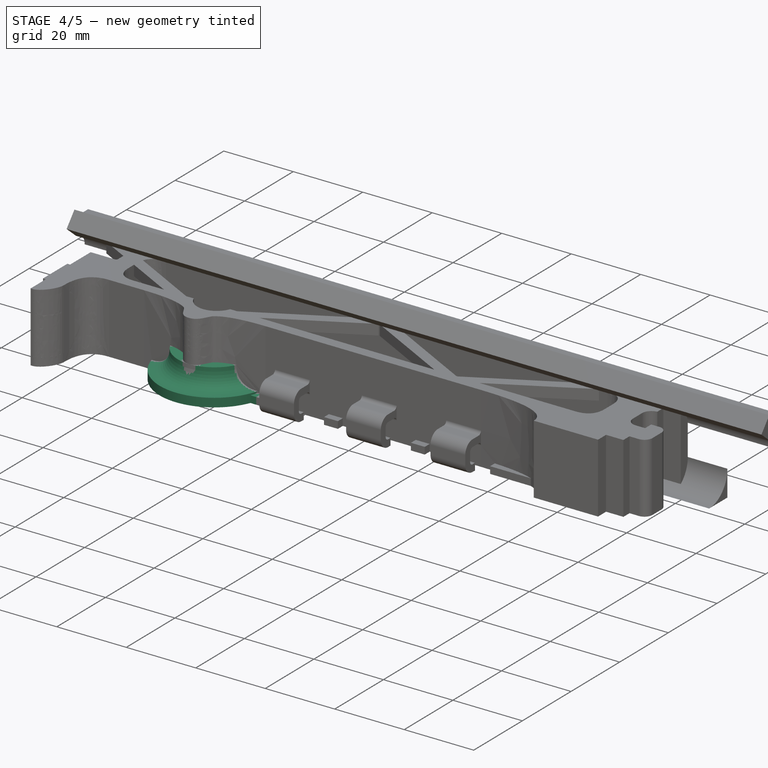
[diagram: stage 4 of 5 — iso view after this stage's code; geometry added in this stage tinted green]
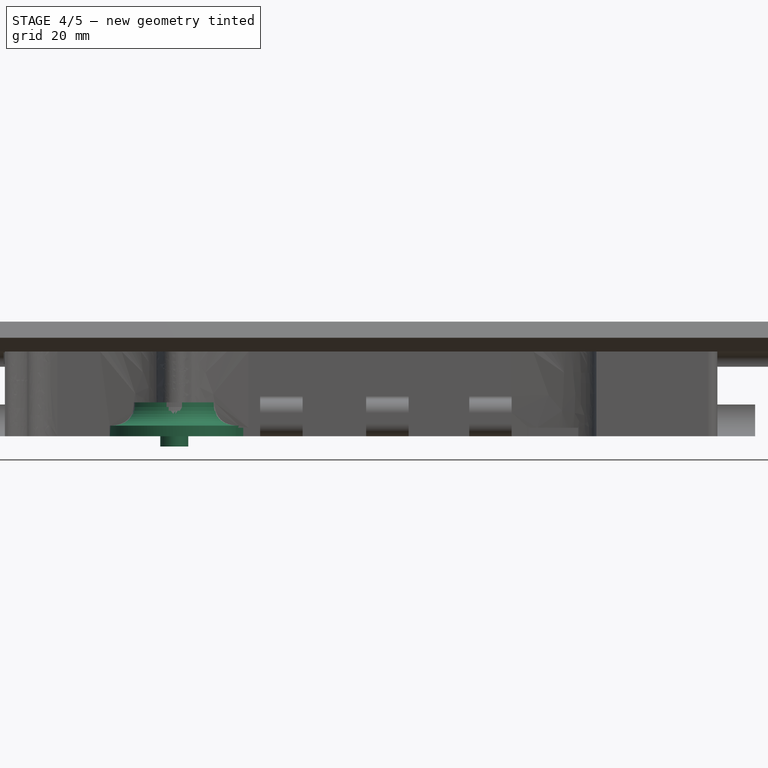
[diagram: stage 4 of 5 — front view after this stage's code; geometry added in this stage tinted green]
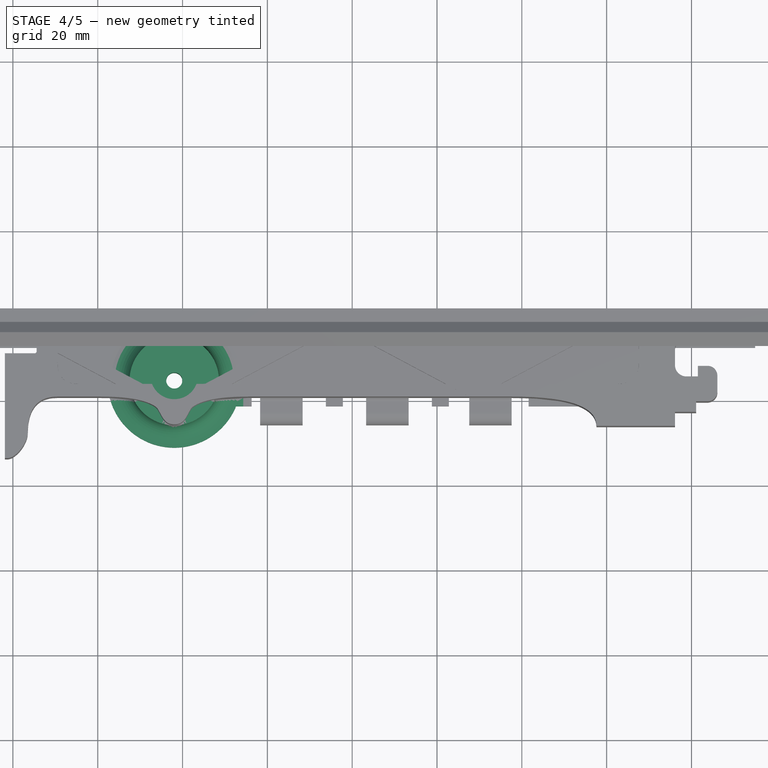
[diagram: stage 4 of 5 — top view after this stage's code; geometry added in this stage tinted green]
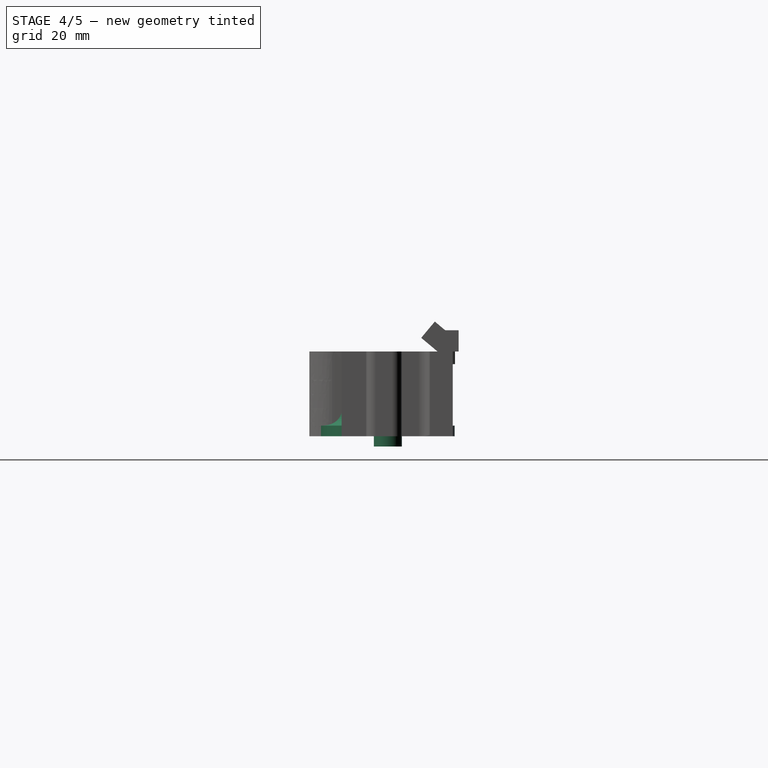
[diagram: stage 4 of 5 — right view after this stage's code; geometry added in this stage tinted green]
FEATURE [Sketcher::SketchObject] Sketch004
  FullyConstrained = true
  Placement = pos=(0,0,0) rot=(1,0,0;1.5708rad)
  sketch-geometry (12):
    g0: LineSegment StartX=15.75 StartY=2.5 StartZ=0 EndX=15.75 EndY=0 EndZ=0
    g1: Circle CenterX=15.75 CenterY=2.5 CenterZ=0 NormalX=0 NormalY=0 NormalZ=1 AngleXU=0 Radius=1
    g2: Circle CenterX=10.55 CenterY=2.5 CenterZ=0 NormalX=0 NormalY=0 NormalZ=1 AngleXU=0 Radius=1
    g3: Circle CenterX=10.55 CenterY=8 CenterZ=0 NormalX=0 NormalY=0 NormalZ=1 AngleXU=0 Radius=1
    g4: BSplineCurve PolesCount=3 KnotsCount=2 Degree=2 IsPeriodic=0
    g5: GeomPoint X=15.75 Y=2.5 Z=0
    g6: GeomPoint X=10.55 Y=8 Z=0
    g7: LineSegment StartX=1.9 StartY=8 StartZ=0 EndX=10.55 EndY=8 EndZ=0
    g8: LineSegment StartX=1.9 StartY=-2.4 StartZ=0 EndX=1.9 EndY=8 EndZ=0
    g9: LineSegment StartX=3.30092 StartY=-2.4 StartZ=0 EndX=3.30092 EndY=0 EndZ=0
    g10: LineSegment StartX=15.75 StartY=0 StartZ=0 EndX=3.30092 EndY=0 EndZ=0
    g11: LineSegment StartX=3.30092 StartY=-2.4 StartZ=0 EndX=1.9 EndY=-2.4 EndZ=0
  constraints (26):
    c: Vertical(g0)
    c: Distance(g0) = 2.5
    c: Coincident(g4,g0)
    c: Weight(g1) = 1
    c: Equal(g1,g2)
    c: Equal(g1,g3)
    c: InternalAlignment(g1,g4)
    c: InternalAlignment(g2,g4)
    c: InternalAlignment(g3,g4)
    c: InternalAlignment(g5,g4)
    c: InternalAlignment(g6,g4)
    c: Block(g4)
    c: Coincident(g7,g4)
    c: Horizontal(g7)
    c: Vertical(g8)
    c: Coincident(g8,g7)
    c: Block(g8)
    c: Vertical(g9)
    c: Coincident(g10,g0)
    c: PointOnObject(g10,g-1)
    c: Horizontal(g10)
    c: Coincident(g10,g9)
    c: Block(g9)
    c: Coincident(g11,g9)
    c: Coincident(g11,g8)
    c: Horizontal(g11)
FEATURE [Part::Revolution] Revolve  label="mainScrewStandRevolve"
  Angle = 360
  Axis = (0,0,1)
  Base = (0,0,0)
  FaceMakerClass = Part::FaceMakerBullseye
  Placement = pos=(-101.95,-15.3,0) rot=(0,0,1;0rad)
  Solid = true
  Source = -> Sketch004
  Symmetric = false
FEATURE [Part::Box] Box021  label="Cube021"
  AttacherType = Attacher::AttachEngine3D
  Height = 2
  Length = 2
  Placement = pos=(-85.7,-21.3,0) rot=(0,0,1;0rad)
  Width = 2
FEATURE [Part::Box] Box022  label="Cube022"
  AttacherType = Attacher::AttachEngine3D
  Height = 2
  Length = 2
  Placement = pos=(-87.7,-21.3,0) rot=(0,0,1;0rad)
  Width = 2
FEATURE [Part::Box] Box023  label="Cube023"
  AttacherType = Attacher::AttachEngine3D
  Height = 2
  Length = 2
  Placement = pos=(-85.7,-21.3,0) rot=(0,0,1;0rad)
  Width = 2
FEATURE [Part::Box] Box024  label="Cube024"
  AttacherType = Attacher::AttachEngine3D
  Height = 2
  Length = 2
  Placement = pos=(-87.7,-21.3,0) rot=(0,0,1;0rad)
  Width = 2
FEATURE [Part::Box] Box026  label="Cube026"
  AttacherType = Attacher::AttachEngine3D
  Height = 2
  Length = 2
  Placement = pos=(-87.7,-21.3,0) rot=(0,0,1;0rad)
  Width = 2
FEATURE [Part::Box] Box034  label="Cube034"
  AttacherType = Attacher::AttachEngine3D
  Height = 2
  Length = 2
  Placement = pos=(-85.7,-21.3,0) rot=(0,0,1;0rad)
  Width = 2
FEATURE [Part::Box] Box035  label="Cube035"
  AttacherType = Attacher::AttachEngine3D
  Height = 2
  Length = 2
  Placement = pos=(-87.7,-21.3,0) rot=(0,0,1;0rad)
  Width = 2
FEATURE [Part::Box] Box036  label="Cube036"
  AttacherType = Attacher::AttachEngine3D
  Height = 2
  Length = 2
  Placement = pos=(-85.7,-21.3,0) rot=(0,0,1;0rad)
  Width = 2
FEATURE [Part::Box] Box037  label="Cube037"
  AttacherType = Attacher::AttachEngine3D
  Height = 2
  Length = 2
  Placement = pos=(-87.7,-21.3,0) rot=(0,0,1;0rad)
  Width = 2
FEATURE [Part::Box] Box038  label="Cube038"
  AttacherType = Attacher::AttachEngine3D
  Height = 2
  Length = 2
  Placement = pos=(-85.7,-21.3,0) rot=(0,0,1;0rad)
  Width = 2
FEATURE [Part::Box] Box039  label="Cube039"
  AttacherType = Attacher::AttachEngine3D
  Height = 2
  Length = 2
  Placement = pos=(-87.7,-21.3,0) rot=(0,0,1;0rad)
  Width = 2
FEATURE [Part::Box] Box040  label="Cube040"
  AttacherType = Attacher::AttachEngine3D
  Height = 2
  Length = 2
  Placement = pos=(-85.7,-21.3,0) rot=(0,0,1;0rad)
  Width = 2
FEATURE [Part::Box] Box041  label="Cube041"
  AttacherType = Attacher::AttachEngine3D
  Height = 2
  Length = 2
  Placement = pos=(-87.7,-21.3,0) rot=(0,0,1;0rad)
  Width = 2
FEATURE [Part::MultiFuse] Fusion024
  Shapes = -> [Box034,Box035,Box036,Box037,Box038,Box039,Box040,Box041]
FEATURE [Part::MultiFuse] Fusion025
  Shapes = -> [Box021,Box022,Box023,Box024,Box026]
FEATURE [Part::MultiFuse] Fusion026
  Shapes = -> [Fusion023,Revolve]
FEATURE [Part::MultiFuse] Fusion027
  Shapes = -> [Fusion024,Fusion025,Fusion026]
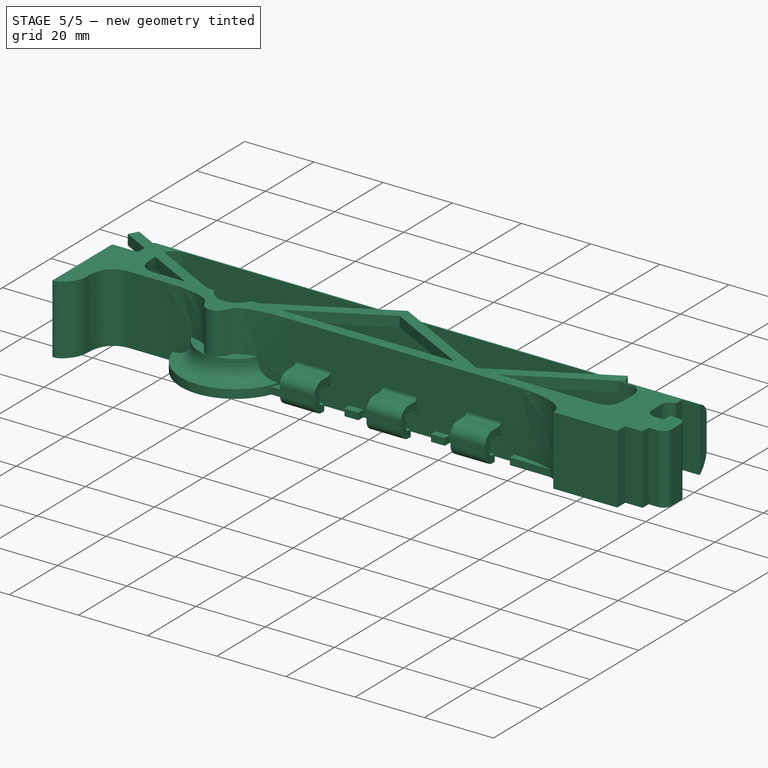
[diagram: stage 5 of 5 — iso view after this stage's code; geometry added in this stage tinted green]
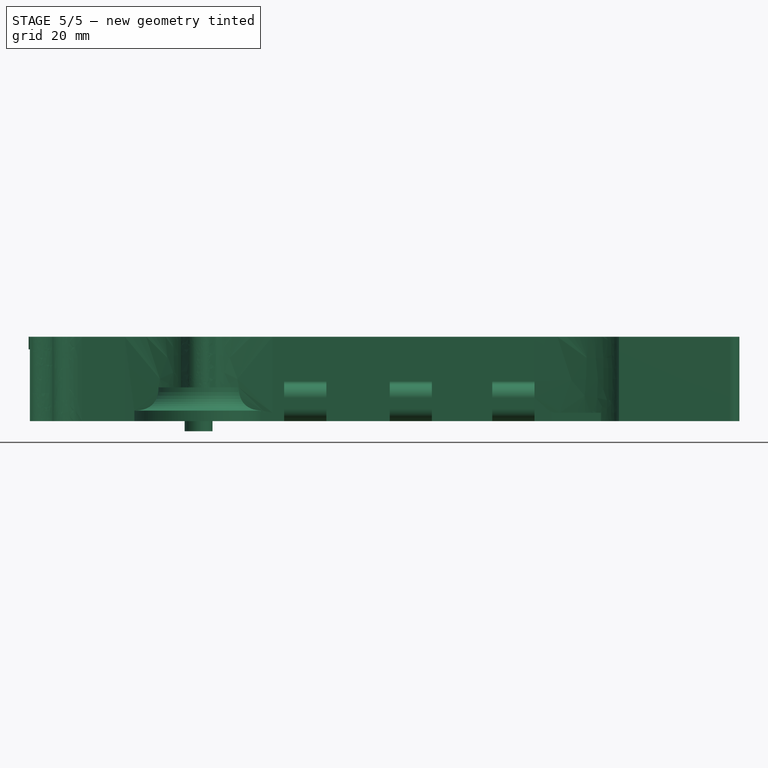
[diagram: stage 5 of 5 — front view after this stage's code; geometry added in this stage tinted green]
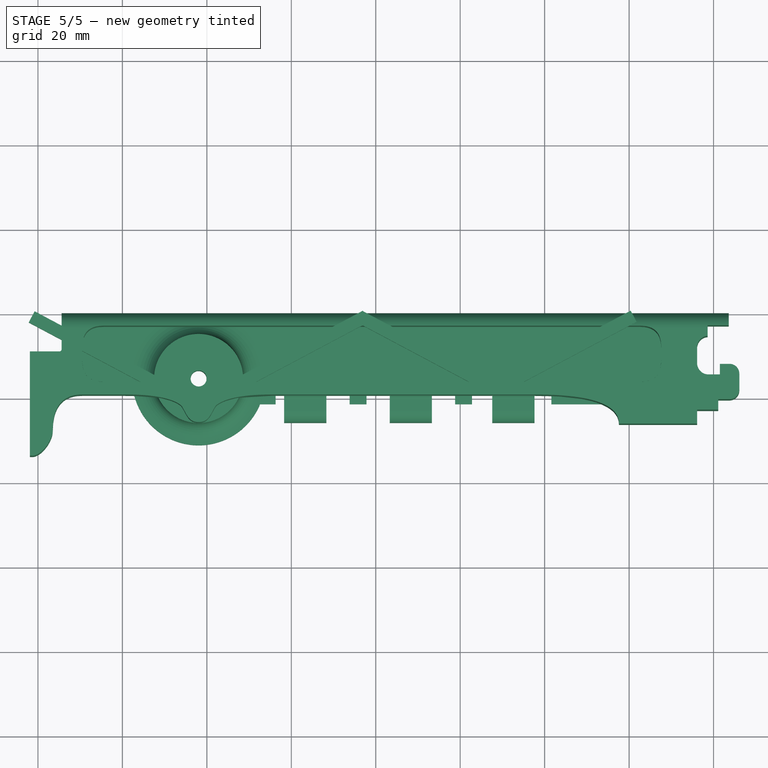
[diagram: stage 5 of 5 — top view after this stage's code; geometry added in this stage tinted green]
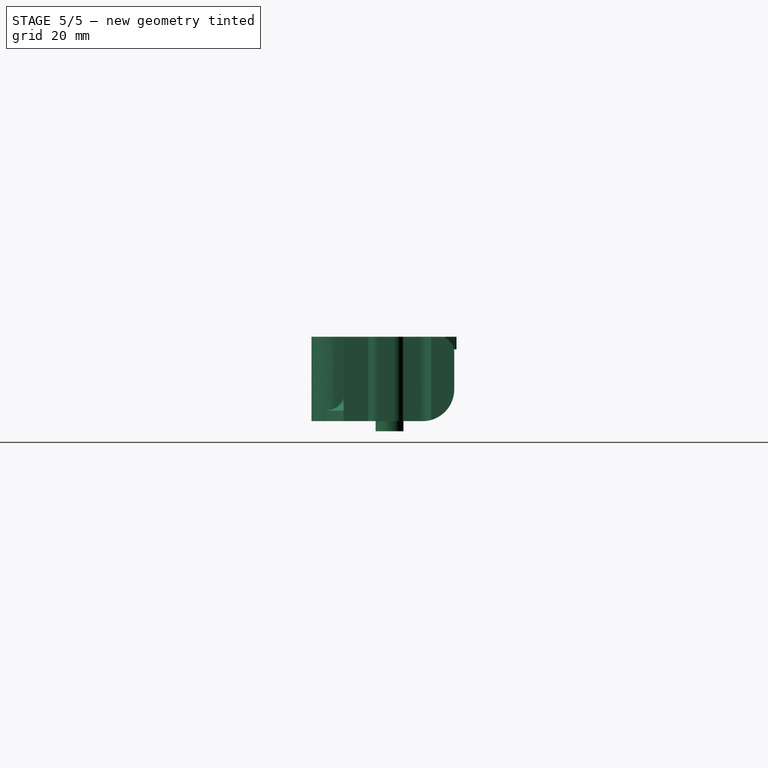
[diagram: stage 5 of 5 — right view after this stage's code; geometry added in this stage tinted green]
FEATURE [Part::Box] Box017  label="Cube017"
  AttacherType = Attacher::AttachEngine3D
  Height = 2
  Length = 2
  Placement = pos=(-85.7,-21.3,0) rot=(0,0,1;0rad)
  Width = 2
FEATURE [Part::Box] Box018  label="Cube018"
  AttacherType = Attacher::AttachEngine3D
  Height = 2
  Length = 2
  Placement = pos=(-87.7,-21.3,0) rot=(0,0,1;0rad)
  Width = 2
FEATURE [Part::MultiFuse] Fusion
  Shapes = -> [Box017,Box018]
FEATURE [Part::Box] Box019  label="Cube019"
  AttacherType = Attacher::AttachEngine3D
  Height = 2
  Length = 2
  Placement = pos=(-85.7,-21.3,0) rot=(0,0,1;0rad)
  Width = 2
FEATURE [Part::Box] Box020  label="Cube020"
  AttacherType = Attacher::AttachEngine3D
  Height = 2
  Length = 2
  Placement = pos=(-87.7,-21.3,0) rot=(0,0,1;0rad)
  Width = 2
FEATURE [Part::Box] Box  label="Cube"
  AttacherType = Attacher::AttachEngine3D
  Height = 10
  Length = 10
  Placement = pos=(-107,0,0) rot=(0,0,1;0rad)
  Width = 10
FEATURE [Part::Box] Box029  label="Cube029"
  AttacherType = Attacher::AttachEngine3D
  Height = 2
  Length = 2
  Placement = pos=(-87.7,-21.3,0) rot=(0,0,1;0rad)
  Width = 2
FEATURE [Part::Box] Box030  label="Cube030"
  AttacherType = Attacher::AttachEngine3D
  Height = 2
  Length = 2
  Placement = pos=(-85.7,-21.3,0) rot=(0,0,1;0rad)
  Width = 2
FEATURE [Part::MultiFuse] Fusion010
  Shapes = -> [Box030,Box029]
FEATURE [Part::Box] Box032  label="Cube032"
  AttacherType = Attacher::AttachEngine3D
  Height = 2
  Length = 2
  Placement = pos=(-85.7,-21.3,0) rot=(0,0,1;0rad)
  Width = 2
FEATURE [Part::Box] Box033  label="Cube033"
  AttacherType = Attacher::AttachEngine3D
  Height = 2
  Length = 2
  Placement = pos=(-87.7,-21.3,0) rot=(0,0,1;0rad)
  Width = 2
FEATURE [Part::MultiFuse] Fusion011
  Shapes = -> [Box032,Box033]
FEATURE [Part::MultiFuse] Fusion028
  Shapes = -> [Fusion011,Fusion010,Fusion027]
FEATURE [Part::MultiFuse] Fusion029
  Shapes = -> [Fusion011,Fusion010,Fusion027,Box020,Box019,Fusion028]
FEATURE [Part::MultiFuse] Fusion030
  Shapes = -> [Fusion011,Fusion010,Fusion027,Box020,Box019,Fusion028,Fusion,Fusion029]
FEATURE [Part::Cut] Cut
  Base = -> Fusion030
  Tool = -> Box
FEATURE [Part::Cut] Cut016
  Base = -> Cut
  Tool = -> Fusion031
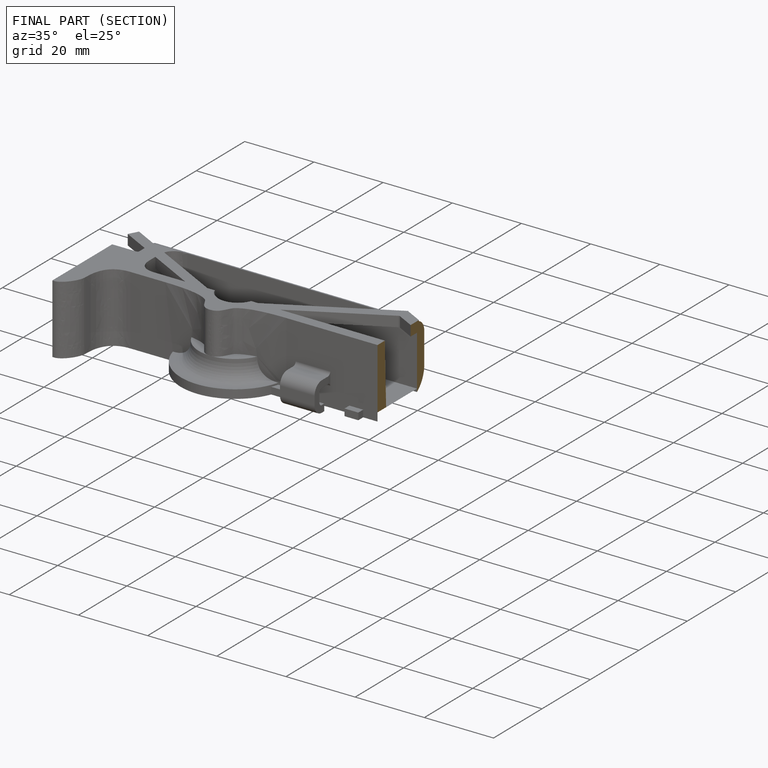
[diagram: finished part — half-section view (interior)]
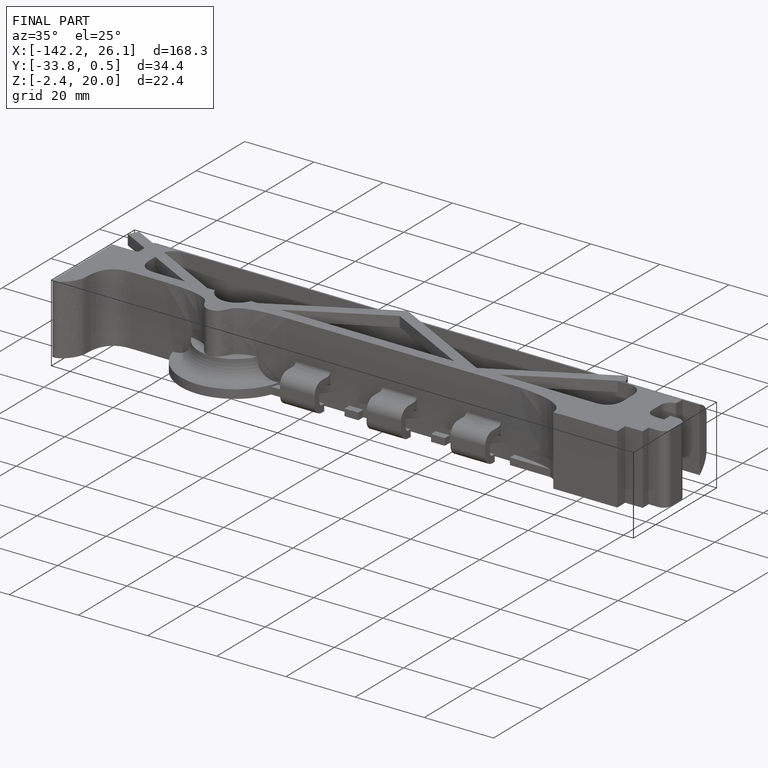
[diagram: finished part — iso view with bounding-box wireframe]
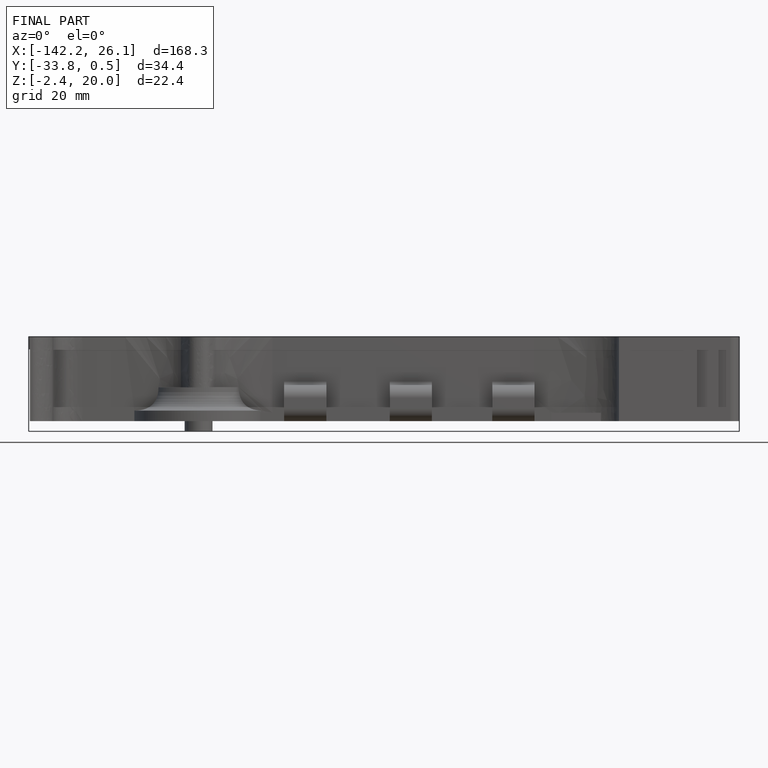
[diagram: finished part — front view with bounding-box wireframe]
